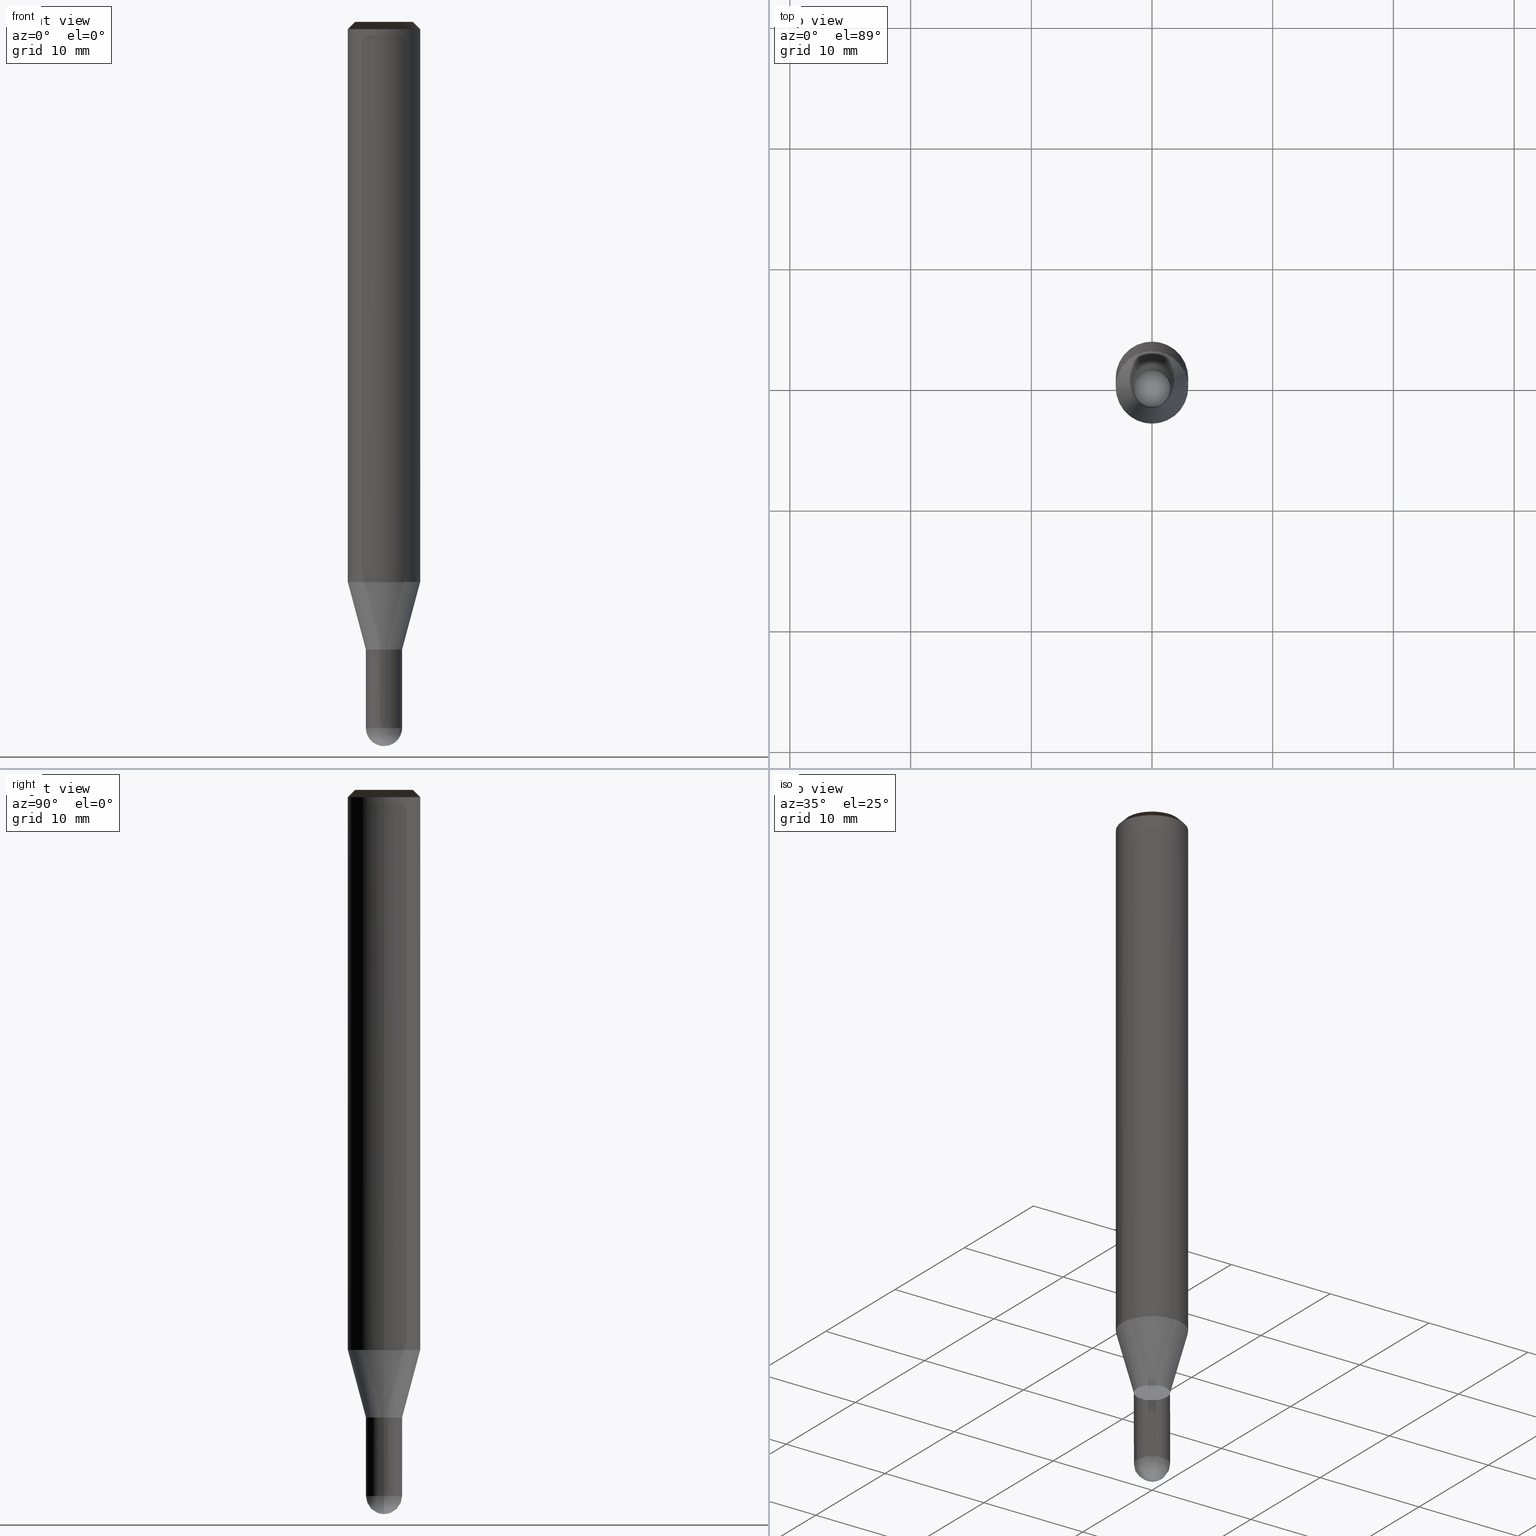
[diagram: canonical four-view strip — front | top / right | iso, engineering-drawing reading convention]
A machine part, canonical four-view strip (front | top / right | iso — engineering-drawing reading convention). The complete STEP part file that produces these views, byte-faithful:
ISO-10303-21;
HEADER;
/* Generated by ISBE GmbH (www.isbe.de) */
/* OPTION: using custom schema-name function */

FILE_DESCRIPTION(
/* description */ (''),
/* implementation_level */ '2;1');

FILE_NAME(
/*name*/ 'SHBS-2030-S06-STH',
/*time_stamp*/'2023-9-13T13:20:38',
/*author*/ ('ISBE GmbH'),
/*organization*/ ('ISBE GmbH'),
/*preprocessor_version*/ 'STEP IO v1.0',
/*originating_system*/ '',
/*authorisation*/ '');

FILE_SCHEMA (('AUTOMOTIVE_DESIGN'));
ENDSEC;

DATA;
#10=SHAPE_DEFINITION_REPRESENTATION(#11,#57);
#11=PRODUCT_DEFINITION_SHAPE('Document','',#13);
#12=PRODUCT_DEFINITION_CONTEXT('3D Mechanical Parts',#17,'design');
#13=PRODUCT_DEFINITION('A','First version',#14,#12);
#14=PRODUCT_DEFINITION_FORMATION_WITH_SPECIFIED_SOURCE('A','First version',#19,.MADE.);
#15=PRODUCT_RELATED_PRODUCT_CATEGORY('tool','tool',(#19));
#16=APPLICATION_PROTOCOL_DEFINITION('Draft International Standard', 'automotive_design',1999,#17);
#17=APPLICATION_CONTEXT('data for automotive mechanical design processes');
#18=PRODUCT_CONTEXT('3D Mechanical Parts',#17,'mechanical');
#19=PRODUCT('Document','Document','ISBE converted to STEP',(#18));
#20=(
LENGTH_UNIT()
NAMED_UNIT(*)
SI_UNIT(.MILLI.,.METRE.)
);
#21=(
NAMED_UNIT(*)
PLANE_ANGLE_UNIT()
SI_UNIT($,.RADIAN.)
);
#22=DIMENSIONAL_EXPONENTS(0.,0.,0.,0.,0.,0.,0.);
#23=PLANE_ANGLE_MEASURE_WITH_UNIT(PLANE_ANGLE_MEASURE(0.01745329252),#21);
#24=(
CONVERSION_BASED_UNIT('DEGREES',#23)
NAMED_UNIT(#22)
PLANE_ANGLE_UNIT()
);
#25=(
NAMED_UNIT(*)
SI_UNIT($,.STERADIAN.)
SOLID_ANGLE_UNIT()
);
#26=UNCERTAINTY_MEASURE_WITH_UNIT(LENGTH_MEASURE(0.001),#20, 'DISTANCE_ACCURACY_VALUE', 'Maximum model space distance between geometric entities at asserted connectivities');
#27=(
GEOMETRIC_REPRESENTATION_CONTEXT(3)
GLOBAL_UNCERTAINTY_ASSIGNED_CONTEXT((#26))
GLOBAL_UNIT_ASSIGNED_CONTEXT((#25,#24,#20))
REPRESENTATION_CONTEXT('ID1','3D')
);
#28=CARTESIAN_POINT('',(0.0,0.0,0.0));
#29=DIRECTION('',(1.0,0.0,0.0));
#30=DIRECTION('',(0.0,0.0,1.0));
#31=AXIS2_PLACEMENT_3D('',#28,#30,#29);
#32=CARTESIAN_POINT('',(0.0,0.0,0.0));
#33=DIRECTION('',(1.0,0.0,0.0));
#34=DIRECTION('',(0.0,0.0,1.0));
#35=AXIS2_PLACEMENT_3D('',#32,#34,#33);
#36=CARTESIAN_POINT('',(0.0,0.0,0.0));
#37=DIRECTION('',(1.0,0.0,0.0));
#38=DIRECTION('',(0.0,0.0,1.0));
#39=AXIS2_PLACEMENT_3D('',#36,#38,#37);
#40=CARTESIAN_POINT('',(0.0,0.0,0.0));
#41=DIRECTION('',(0.0,0.0,1.0));
#42=DIRECTION('',(1.0,0.0,0.0));
#43=AXIS2_PLACEMENT_3D('MCS',#40,#42,#41);
#44=CARTESIAN_POINT('',(0.0,0.0,46.401));
#45=DIRECTION('',(0.0,0.0,1.0));
#46=DIRECTION('',(1.0,0.0,0.0));
#47=AXIS2_PLACEMENT_3D('PCS',#44,#46,#45);
#48=CARTESIAN_POINT('',(0.0,0.0,-13.599));
#49=DIRECTION('',(0.0,0.0,1.0));
#50=DIRECTION('',(1.0,0.0,0.0));
#51=AXIS2_PLACEMENT_3D('CIP',#48,#50,#49);
#52=CARTESIAN_POINT('',(0.0,-1.5,-13.599));
#53=DIRECTION('',(0.0,0.0,1.0));
#54=DIRECTION('',(1.0,0.0,0.0));
#55=AXIS2_PLACEMENT_3D('CRP',#52,#54,#53);
#57=SHAPE_REPRESENTATION('Document',(#31,#35,#39,#43,#47,#51,#55),#27);
#58=DIRECTION('',(1.0,0.0,0.0));
#59=DIRECTION('',(0.0,0.0,1.0));
#60=CARTESIAN_POINT('',(-0.014999236035,-0.000151388161,-13.598759551399));
#61=CARTESIAN_POINT('',(-0.014528881156,-0.045829518525,-13.598229324301));
#62=CARTESIAN_POINT('',(-0.013937186909,-0.095089375168,-13.595918089126));
#63=CARTESIAN_POINT('',(-0.013184131588,-0.143429868086,-13.592068669424));
#64=CARTESIAN_POINT('',(-0.012179727689,-0.191428663775,-13.586685020735));
#65=CARTESIAN_POINT('',(-0.010840383069,-0.239154282228,-13.579772675122));
#66=CARTESIAN_POINT('',(-0.009085053089,-0.286593980739,-13.571338735487));
#67=CARTESIAN_POINT('',(-0.006835094578,-0.333711409892,-13.561391868273));
#68=CARTESIAN_POINT('',(-0.004014551228,-0.380460696051,-13.549942294559));
#69=CARTESIAN_POINT('',(-0.00055052818,-0.426791024877,-13.537001779555));
#70=CARTESIAN_POINT('',(0.003626412446,-0.472648415348,-13.522583620516));
#71=CARTESIAN_POINT('',(0.008581854661,-0.517976494259,-13.506702633075));
#72=CARTESIAN_POINT('',(0.014377137993,-0.562716872897,-13.489375136019));
#73=CARTESIAN_POINT('',(0.021068977194,-0.606809357753,-13.470618934524));
#74=CARTESIAN_POINT('',(0.028709095207,-0.650192095277,-13.450453301854));
#75=CARTESIAN_POINT('',(0.037343871872,-0.692801697888,-13.42889895956));
#76=CARTESIAN_POINT('',(0.047014010807,-0.734573375122,-13.405978056185));
#77=CARTESIAN_POINT('',(0.057754226889,-0.775441082711,-13.381714144508));
#78=CARTESIAN_POINT('',(0.069592956771,-0.815337696513,-13.356132157338));
#79=CARTESIAN_POINT('',(0.082552094964,-0.854195215038,-13.329258381895));
#80=CARTESIAN_POINT('',(0.096646757996,-0.891944992255,-13.301120432802));
#81=CARTESIAN_POINT('',(0.111885079166,-0.928518001096,-13.271747223702));
#82=CARTESIAN_POINT('',(0.128268036396,-0.963845127044,-13.241168937554));
#83=CARTESIAN_POINT('',(0.145789315592,-0.997857490483,-13.209416995613));
#84=CARTESIAN_POINT('',(0.164435211816,-1.030486795814,-13.176524025147));
#85=CARTESIAN_POINT('',(0.184184570425,-1.061665704817,-13.142523825905));
#86=CARTESIAN_POINT('',(0.205008770129,-1.091328231247,-13.107451335392));
#87=CARTESIAN_POINT('',(0.226871749666,-1.119410153213,-13.071342592962));
#88=CARTESIAN_POINT('',(0.249730079542,-1.145849439531,-13.034234702788));
#89=CARTESIAN_POINT('',(0.273533079913,-1.170586685877,-12.996165795737));
#90=CARTESIAN_POINT('',(0.298222985356,-1.193565556318,-12.957174990183));
#91=CARTESIAN_POINT('',(0.323735156861,-1.214733225538,-12.917302351816));
#92=CARTESIAN_POINT('',(0.349998340953,-1.234040816931,-12.876588852466));
#93=CARTESIAN_POINT('',(0.376934975398,-1.251443831608,-12.835076328006));
#94=CARTESIAN_POINT('',(0.404461540476,-1.266902563307,-12.792807435361));
#95=CARTESIAN_POINT('',(0.432488954305,-1.280382494216,-12.749825608676));
#96=CARTESIAN_POINT('',(0.460923010252,-1.291854666812,-12.706175014684));
#97=CARTESIAN_POINT('',(0.489664853919,-1.301296026927,-12.661900507319));
#98=CARTESIAN_POINT('',(0.518611496779,-1.308689733502,-12.617047581632));
#99=CARTESIAN_POINT('',(0.547656363036,-1.314025430739,-12.571662327035));
#100=CARTESIAN_POINT('',(0.576689865882,-1.317299478704,-12.525791379947));
#101=CARTESIAN_POINT('',(0.605600008906,-1.31851513884,-12.479481875864));
#102=CARTESIAN_POINT('',(0.634273008087,-1.317682711279,-12.432781400934));
#103=CARTESIAN_POINT('',(0.662593929459,-1.314819621339,-12.385737943052));
#104=CARTESIAN_POINT('',(0.690447337339,-1.309950453166,-12.33839984255));
#105=CARTESIAN_POINT('',(0.717717947763,-1.303106928988,-12.290815742527));
#106=CARTESIAN_POINT('',(0.744291281714,-1.294327833116,-12.243034538862));
#107=CARTESIAN_POINT('',(0.770054312603,-1.283658880386,-12.195105329971));
#108=CARTESIAN_POINT('',(0.794896102545,-1.271152529401,-12.147077366357));
#109=CARTESIAN_POINT('',(0.81870842201,-1.256867741542,-12.099));
#110=CARTESIAN_POINT('',(0.856668953844,-1.231307558459,-12.019731707317));
#111=CARTESIAN_POINT('',(0.893832088722,-1.204601260655,-11.940463414634));
#112=CARTESIAN_POINT('',(0.930163234785,-1.176773706646,-11.861195121951));
#113=CARTESIAN_POINT('',(0.965628574601,-1.147850798629,-11.781926829268));
#114=CARTESIAN_POINT('',(1.000195096638,-1.117859458368,-11.702658536585));
#115=CARTESIAN_POINT('',(1.033830625993,-1.086827602133,-11.623390243902));
#116=CARTESIAN_POINT('',(1.066503854344,-1.054784114722,-11.54412195122));
#117=CARTESIAN_POINT('',(1.098184369088,-1.021758822566,-11.464853658537));
#118=CARTESIAN_POINT('',(1.12884268165,-0.987782465974,-11.385585365854));
#119=CARTESIAN_POINT('',(1.158450254933,-0.952886670516,-11.306317073171));
#120=CARTESIAN_POINT('',(1.186979529879,-0.917103917584,-11.227048780488));
#121=CARTESIAN_POINT('',(1.214403951125,-0.880467514161,-11.147780487805));
#122=CARTESIAN_POINT('',(1.240697991713,-0.843011561818,-11.068512195122));
#123=CARTESIAN_POINT('',(1.265837176861,-0.80477092497,-10.989243902439));
#124=CARTESIAN_POINT('',(1.289798106735,-0.765781198427,-10.909975609756));
#125=CARTESIAN_POINT('',(1.312558478236,-0.726078674256,-10.830707317073));
#126=CARTESIAN_POINT('',(1.33409710576,-0.685700308009,-10.75143902439));
#127=CARTESIAN_POINT('',(1.354393940911,-0.644683684316,-10.672170731707));
#128=CARTESIAN_POINT('',(1.373430091172,-0.603066981904,-10.592902439024));
#129=CARTESIAN_POINT('',(1.391187837483,-0.560888938062,-10.513634146341));
#130=CARTESIAN_POINT('',(1.407650650736,-0.51818881258,-10.434365853659));
#131=CARTESIAN_POINT('',(1.422803207163,-0.475006351208,-10.355097560976));
#132=CARTESIAN_POINT('',(1.436631402595,-0.43138174866,-10.275829268293));
#133=CARTESIAN_POINT('',(1.449122365597,-0.3873556112,-10.19656097561));
#134=CARTESIAN_POINT('',(1.46026446944,-0.342968918843,-10.117292682927));
#135=CARTESIAN_POINT('',(1.47004734293,-0.298262987216,-10.038024390244));
#136=CARTESIAN_POINT('',(1.478461880062,-0.253279429095,-9.958756097561));
#137=CARTESIAN_POINT('',(1.485500248491,-0.208060115674,-9.879487804878));
#138=CARTESIAN_POINT('',(1.491155896824,-0.162647137592,-9.800219512195));
#139=CARTESIAN_POINT('',(1.495423560723,-0.117082765751,-9.720951219512));
#140=CARTESIAN_POINT('',(1.498299267797,-0.071409411974,-9.641682926829));
#141=CARTESIAN_POINT('',(1.499780341308,-0.025669589526,-9.562414634146));
#142=CARTESIAN_POINT('',(1.499865402655,0.020094126461,-9.483146341463));
#143=CARTESIAN_POINT('',(1.498554372663,0.065839138613,-9.40387804878));
#144=CARTESIAN_POINT('',(1.495848471652,0.111522866965,-9.324609756098));
#145=CARTESIAN_POINT('',(1.491750218306,0.157102788596,-9.245341463415));
#146=CARTESIAN_POINT('',(1.486263427323,0.20253647721,-9.166073170732));
#147=CARTESIAN_POINT('',(1.479393205871,0.247781642627,-9.086804878049));
#148=CARTESIAN_POINT('',(1.471145948827,0.292796170144,-9.007536585366));
#149=CARTESIAN_POINT('',(1.461529332829,0.337538159742,-8.928268292683));
#150=CARTESIAN_POINT('',(1.45055230913,0.381965965079,-8.849));
#151=CARTESIAN_POINT('',(1.438225095265,0.426038232263,-8.769731707317));
#152=CARTESIAN_POINT('',(1.424559165542,0.469713938338,-8.690463414634));
#153=CARTESIAN_POINT('',(1.40956724036,0.512952429474,-8.611195121951));
#154=CARTESIAN_POINT('',(1.393263274368,0.555713458804,-8.531926829268));
#155=CARTESIAN_POINT('',(1.37566244348,0.597957223887,-8.452658536585));
#156=CARTESIAN_POINT('',(1.356781130743,0.63964440376,-8.373390243902));
#157=CARTESIAN_POINT('',(1.336636911092,0.680736195532,-8.29412195122));
#158=CARTESIAN_POINT('',(1.31524853499,0.721194350509,-8.214853658537));
#159=CARTESIAN_POINT('',(1.292635910976,0.760981209791,-8.135585365854));
#160=CARTESIAN_POINT('',(1.26882008713,0.80005973933,-8.056317073171));
#161=CARTESIAN_POINT('',(1.243823231484,0.838393564396,-7.977048780488));
#162=CARTESIAN_POINT('',(1.217668611389,0.875947003441,-7.897780487805));
#163=CARTESIAN_POINT('',(1.190380571856,0.912685101307,-7.818512195122));
#164=CARTESIAN_POINT('',(1.161984512894,0.948573661766,-7.739243902439));
#165=CARTESIAN_POINT('',(1.132506865869,0.983579279347,-7.659975609756));
#166=CARTESIAN_POINT('',(1.101975068901,1.017669370434,-7.580707317073));
#167=CARTESIAN_POINT('',(1.070417541327,1.050812203593,-7.50143902439));
#168=CARTESIAN_POINT('',(1.037863657242,1.082976929106,-7.422170731707));
#169=CARTESIAN_POINT('',(1.004343718162,1.114133607692,-7.342902439024));
#170=CARTESIAN_POINT('',(0.969888924819,1.144253238367,-7.263634146341));
#171=CARTESIAN_POINT('',(0.934531348115,1.173307785447,-7.184365853659));
#172=CARTESIAN_POINT('',(0.898303899275,1.201270204637,-7.105097560976));
#173=CARTESIAN_POINT('',(0.861240299209,1.228114468206,-7.025829268293));
#174=CARTESIAN_POINT('',(0.823375047129,1.253815589218,-6.94656097561));
#175=CARTESIAN_POINT('',(0.784743388429,1.278349644783,-6.867292682927));
#176=CARTESIAN_POINT('',(0.745381281886,1.301693798331,-6.788024390244));
#177=CARTESIAN_POINT('',(0.705325366185,1.323826320866,-6.708756097561));
#178=CARTESIAN_POINT('',(0.664612925816,1.344726611189,-6.629487804878));
#179=CARTESIAN_POINT('',(0.62328185637,1.364375215079,-6.550219512195));
#180=CARTESIAN_POINT('',(0.581370629264,1.382753843397,-6.470951219512));
#181=CARTESIAN_POINT('',(0.538918255933,1.399845389113,-6.391682926829));
#182=CARTESIAN_POINT('',(0.495964251517,1.415633943227,-6.312414634146));
#183=CARTESIAN_POINT('',(0.452548598079,1.430104809578,-6.233146341463));
#184=CARTESIAN_POINT('',(0.40871170739,1.443244518521,-6.15387804878));
#185=CARTESIAN_POINT('',(0.364494383314,1.455040839472,-6.074609756098));
#186=CARTESIAN_POINT('',(0.319937783827,1.465482792284,-5.995341463415));
#187=CARTESIAN_POINT('',(0.275083382705,1.47456065747,-5.916073170732));
#188=CARTESIAN_POINT('',(0.229972930921,1.482265985255,-5.836804878049));
#189=CARTESIAN_POINT('',(0.184648417785,1.488591603432,-5.757536585366));
#190=CARTESIAN_POINT('',(0.139152031855,1.493531624048,-5.678268292683));
#191=CARTESIAN_POINT('',(0.093526121671,1.497081448875,-5.599));
#192=CARTESIAN_POINT('',(0.014999236035,0.000151388161,-13.598759551399));
#193=CARTESIAN_POINT('',(0.014528881156,0.045829518525,-13.598229324301));
#194=CARTESIAN_POINT('',(0.013937186909,0.095089375168,-13.595918089126));
#195=CARTESIAN_POINT('',(0.013184131588,0.143429868086,-13.592068669424));
#196=CARTESIAN_POINT('',(0.012179727689,0.191428663775,-13.586685020735));
#197=CARTESIAN_POINT('',(0.010840383069,0.239154282228,-13.579772675122));
#198=CARTESIAN_POINT('',(0.009085053089,0.286593980739,-13.571338735487));
#199=CARTESIAN_POINT('',(0.006835094578,0.333711409892,-13.561391868273));
#200=CARTESIAN_POINT('',(0.004014551228,0.380460696051,-13.549942294559));
#201=CARTESIAN_POINT('',(0.00055052818,0.426791024877,-13.537001779555));
#202=CARTESIAN_POINT('',(-0.003626412446,0.472648415348,-13.522583620516));
#203=CARTESIAN_POINT('',(-0.008581854661,0.517976494259,-13.506702633075));
#204=CARTESIAN_POINT('',(-0.014377137993,0.562716872897,-13.489375136019));
#205=CARTESIAN_POINT('',(-0.021068977194,0.606809357753,-13.470618934524));
#206=CARTESIAN_POINT('',(-0.028709095207,0.650192095277,-13.450453301854));
#207=CARTESIAN_POINT('',(-0.037343871872,0.692801697888,-13.42889895956));
#208=CARTESIAN_POINT('',(-0.047014010807,0.734573375122,-13.405978056185));
#209=CARTESIAN_POINT('',(-0.057754226889,0.775441082711,-13.381714144508));
#210=CARTESIAN_POINT('',(-0.069592956771,0.815337696513,-13.356132157338));
#211=CARTESIAN_POINT('',(-0.082552094964,0.854195215038,-13.329258381895));
#212=CARTESIAN_POINT('',(-0.096646757996,0.891944992255,-13.301120432802));
#213=CARTESIAN_POINT('',(-0.111885079166,0.928518001096,-13.271747223702));
#214=CARTESIAN_POINT('',(-0.128268036396,0.963845127044,-13.241168937554));
#215=CARTESIAN_POINT('',(-0.145789315592,0.997857490483,-13.209416995613));
#216=CARTESIAN_POINT('',(-0.164435211816,1.030486795814,-13.176524025147));
#217=CARTESIAN_POINT('',(-0.184184570425,1.061665704817,-13.142523825905));
#218=CARTESIAN_POINT('',(-0.205008770129,1.091328231247,-13.107451335392));
#219=CARTESIAN_POINT('',(-0.226871749666,1.119410153213,-13.071342592962));
#220=CARTESIAN_POINT('',(-0.249730079542,1.145849439531,-13.034234702788));
#221=CARTESIAN_POINT('',(-0.273533079913,1.170586685877,-12.996165795737));
#222=CARTESIAN_POINT('',(-0.298222985356,1.193565556318,-12.957174990183));
#223=CARTESIAN_POINT('',(-0.323735156861,1.214733225538,-12.917302351816));
#224=CARTESIAN_POINT('',(-0.349998340953,1.234040816931,-12.876588852466));
#225=CARTESIAN_POINT('',(-0.376934975398,1.251443831608,-12.835076328006));
#226=CARTESIAN_POINT('',(-0.404461540476,1.266902563307,-12.792807435361));
#227=CARTESIAN_POINT('',(-0.432488954305,1.280382494216,-12.749825608676));
#228=CARTESIAN_POINT('',(-0.460923010252,1.291854666812,-12.706175014684));
#229=CARTESIAN_POINT('',(-0.489664853919,1.301296026927,-12.661900507319));
#230=CARTESIAN_POINT('',(-0.518611496779,1.308689733502,-12.617047581632));
#231=CARTESIAN_POINT('',(-0.547656363036,1.314025430739,-12.571662327035));
#232=CARTESIAN_POINT('',(-0.576689865882,1.317299478704,-12.525791379947));
#233=CARTESIAN_POINT('',(-0.605600008906,1.31851513884,-12.479481875864));
#234=CARTESIAN_POINT('',(-0.634273008087,1.317682711279,-12.432781400934));
#235=CARTESIAN_POINT('',(-0.662593929459,1.314819621339,-12.385737943052));
#236=CARTESIAN_POINT('',(-0.690447337339,1.309950453166,-12.33839984255));
#237=CARTESIAN_POINT('',(-0.717717947763,1.303106928988,-12.290815742527));
#238=CARTESIAN_POINT('',(-0.744291281714,1.294327833116,-12.243034538862));
#239=CARTESIAN_POINT('',(-0.770054312603,1.283658880386,-12.195105329971));
#240=CARTESIAN_POINT('',(-0.794896102545,1.271152529401,-12.147077366357));
#241=CARTESIAN_POINT('',(-0.81870842201,1.256867741542,-12.099));
#242=CARTESIAN_POINT('',(-0.856668953844,1.231307558459,-12.019731707317));
#243=CARTESIAN_POINT('',(-0.893832088722,1.204601260655,-11.940463414634));
#244=CARTESIAN_POINT('',(-0.930163234785,1.176773706646,-11.861195121951));
#245=CARTESIAN_POINT('',(-0.965628574601,1.147850798629,-11.781926829268));
#246=CARTESIAN_POINT('',(-1.000195096638,1.117859458368,-11.702658536585));
#247=CARTESIAN_POINT('',(-1.033830625993,1.086827602133,-11.623390243902));
#248=CARTESIAN_POINT('',(-1.066503854344,1.054784114722,-11.54412195122));
#249=CARTESIAN_POINT('',(-1.098184369088,1.021758822566,-11.464853658537));
#250=CARTESIAN_POINT('',(-1.12884268165,0.987782465974,-11.385585365854));
#251=CARTESIAN_POINT('',(-1.158450254933,0.952886670516,-11.306317073171));
#252=CARTESIAN_POINT('',(-1.186979529879,0.917103917584,-11.227048780488));
#253=CARTESIAN_POINT('',(-1.214403951125,0.880467514161,-11.147780487805));
#254=CARTESIAN_POINT('',(-1.240697991713,0.843011561818,-11.068512195122));
#255=CARTESIAN_POINT('',(-1.265837176861,0.80477092497,-10.989243902439));
#256=CARTESIAN_POINT('',(-1.289798106735,0.765781198427,-10.909975609756));
#257=CARTESIAN_POINT('',(-1.312558478236,0.726078674256,-10.830707317073));
#258=CARTESIAN_POINT('',(-1.33409710576,0.685700308009,-10.75143902439));
#259=CARTESIAN_POINT('',(-1.354393940911,0.644683684316,-10.672170731707));
#260=CARTESIAN_POINT('',(-1.373430091172,0.603066981904,-10.592902439024));
#261=CARTESIAN_POINT('',(-1.391187837483,0.560888938062,-10.513634146341));
#262=CARTESIAN_POINT('',(-1.407650650736,0.51818881258,-10.434365853659));
#263=CARTESIAN_POINT('',(-1.422803207163,0.475006351208,-10.355097560976));
#264=CARTESIAN_POINT('',(-1.436631402595,0.43138174866,-10.275829268293));
#265=CARTESIAN_POINT('',(-1.449122365597,0.3873556112,-10.19656097561));
#266=CARTESIAN_POINT('',(-1.46026446944,0.342968918843,-10.117292682927));
#267=CARTESIAN_POINT('',(-1.47004734293,0.298262987216,-10.038024390244));
#268=CARTESIAN_POINT('',(-1.478461880062,0.253279429095,-9.958756097561));
#269=CARTESIAN_POINT('',(-1.485500248491,0.208060115674,-9.879487804878));
#270=CARTESIAN_POINT('',(-1.491155896824,0.162647137592,-9.800219512195));
#271=CARTESIAN_POINT('',(-1.495423560723,0.117082765751,-9.720951219512));
#272=CARTESIAN_POINT('',(-1.498299267797,0.071409411974,-9.641682926829));
#273=CARTESIAN_POINT('',(-1.499780341308,0.025669589526,-9.562414634146));
#274=CARTESIAN_POINT('',(-1.499865402655,-0.020094126461,-9.483146341463));
#275=CARTESIAN_POINT('',(-1.498554372663,-0.065839138613,-9.40387804878));
#276=CARTESIAN_POINT('',(-1.495848471652,-0.111522866965,-9.324609756098));
#277=CARTESIAN_POINT('',(-1.491750218306,-0.157102788596,-9.245341463415));
#278=CARTESIAN_POINT('',(-1.486263427323,-0.20253647721,-9.166073170732));
#279=CARTESIAN_POINT('',(-1.479393205871,-0.247781642627,-9.086804878049));
#280=CARTESIAN_POINT('',(-1.471145948827,-0.292796170144,-9.007536585366));
#281=CARTESIAN_POINT('',(-1.461529332829,-0.337538159742,-8.928268292683));
#282=CARTESIAN_POINT('',(-1.45055230913,-0.381965965079,-8.849));
#283=CARTESIAN_POINT('',(-1.438225095265,-0.426038232263,-8.769731707317));
#284=CARTESIAN_POINT('',(-1.424559165542,-0.469713938338,-8.690463414634));
#285=CARTESIAN_POINT('',(-1.40956724036,-0.512952429474,-8.611195121951));
#286=CARTESIAN_POINT('',(-1.393263274368,-0.555713458804,-8.531926829268));
#287=CARTESIAN_POINT('',(-1.37566244348,-0.597957223887,-8.452658536585));
#288=CARTESIAN_POINT('',(-1.356781130743,-0.63964440376,-8.373390243902));
#289=CARTESIAN_POINT('',(-1.336636911092,-0.680736195532,-8.29412195122));
#290=CARTESIAN_POINT('',(-1.31524853499,-0.721194350509,-8.214853658537));
#291=CARTESIAN_POINT('',(-1.292635910976,-0.760981209791,-8.135585365854));
#292=CARTESIAN_POINT('',(-1.26882008713,-0.80005973933,-8.056317073171));
#293=CARTESIAN_POINT('',(-1.243823231484,-0.838393564396,-7.977048780488));
#294=CARTESIAN_POINT('',(-1.217668611389,-0.875947003441,-7.897780487805));
#295=CARTESIAN_POINT('',(-1.190380571856,-0.912685101307,-7.818512195122));
#296=CARTESIAN_POINT('',(-1.161984512894,-0.948573661766,-7.739243902439));
#297=CARTESIAN_POINT('',(-1.132506865869,-0.983579279347,-7.659975609756));
#298=CARTESIAN_POINT('',(-1.101975068901,-1.017669370434,-7.580707317073));
#299=CARTESIAN_POINT('',(-1.070417541327,-1.050812203593,-7.50143902439));
#300=CARTESIAN_POINT('',(-1.037863657242,-1.082976929106,-7.422170731707));
#301=CARTESIAN_POINT('',(-1.004343718162,-1.114133607692,-7.342902439024));
#302=CARTESIAN_POINT('',(-0.969888924819,-1.144253238367,-7.263634146341));
#303=CARTESIAN_POINT('',(-0.934531348115,-1.173307785447,-7.184365853659));
#304=CARTESIAN_POINT('',(-0.898303899275,-1.201270204637,-7.105097560976));
#305=CARTESIAN_POINT('',(-0.861240299209,-1.228114468206,-7.025829268293));
#306=CARTESIAN_POINT('',(-0.823375047129,-1.253815589218,-6.94656097561));
#307=CARTESIAN_POINT('',(-0.784743388429,-1.278349644783,-6.867292682927));
#308=CARTESIAN_POINT('',(-0.745381281886,-1.301693798331,-6.788024390244));
#309=CARTESIAN_POINT('',(-0.705325366185,-1.323826320866,-6.708756097561));
#310=CARTESIAN_POINT('',(-0.664612925816,-1.344726611189,-6.629487804878));
#311=CARTESIAN_POINT('',(-0.62328185637,-1.364375215079,-6.550219512195));
#312=CARTESIAN_POINT('',(-0.581370629264,-1.382753843397,-6.470951219512));
#313=CARTESIAN_POINT('',(-0.538918255933,-1.399845389113,-6.391682926829));
#314=CARTESIAN_POINT('',(-0.495964251517,-1.415633943227,-6.312414634146));
#315=CARTESIAN_POINT('',(-0.452548598079,-1.430104809578,-6.233146341463));
#316=CARTESIAN_POINT('',(-0.40871170739,-1.443244518521,-6.15387804878));
#317=CARTESIAN_POINT('',(-0.364494383314,-1.455040839472,-6.074609756098));
#318=CARTESIAN_POINT('',(-0.319937783827,-1.465482792284,-5.995341463415));
#319=CARTESIAN_POINT('',(-0.275083382705,-1.47456065747,-5.916073170732));
#320=CARTESIAN_POINT('',(-0.229972930921,-1.482265985255,-5.836804878049));
#321=CARTESIAN_POINT('',(-0.184648417785,-1.488591603432,-5.757536585366));
#322=CARTESIAN_POINT('',(-0.139152031855,-1.493531624048,-5.678268292683));
#323=CARTESIAN_POINT('',(-0.093526121671,-1.497081448875,-5.599));
#324=CARTESIAN_POINT('',(0.0,0.0,-13.599));
#325=CARTESIAN_POINT('',(1.5,0.0,-13.599));
#326=CARTESIAN_POINT('',(1.5,1.5,-13.599));
#327=CARTESIAN_POINT('',(0.0,1.5,-13.599));
#328=CARTESIAN_POINT('',(-1.5,1.5,-13.599));
#329=CARTESIAN_POINT('',(-1.5,0.0,-13.599));
#330=CARTESIAN_POINT('',(1.5,0.0,-12.099));
#331=CARTESIAN_POINT('',(1.5,1.5,-12.099));
#332=CARTESIAN_POINT('',(0.0,1.5,-12.099));
#333=CARTESIAN_POINT('',(-1.5,1.5,-12.099));
#334=CARTESIAN_POINT('',(-1.5,0.0,-12.099));
#335=CARTESIAN_POINT('',(1.5,0.0,-5.599));
#336=CARTESIAN_POINT('',(1.5,1.5,-5.599));
#337=CARTESIAN_POINT('',(0.0,1.5,-5.599));
#338=CARTESIAN_POINT('',(-1.5,1.5,-5.599));
#339=CARTESIAN_POINT('',(-1.5,0.0,-5.599));
#340=CARTESIAN_POINT('',(0.0,0.0,-5.599));
#341=CARTESIAN_POINT('',(-1.5,-1.5,-13.599));
#342=CARTESIAN_POINT('',(0.0,-1.5,-13.599));
#343=CARTESIAN_POINT('',(1.5,-1.5,-13.599));
#344=CARTESIAN_POINT('',(-1.5,-1.5,-12.099));
#345=CARTESIAN_POINT('',(0.0,-1.5,-12.099));
#346=CARTESIAN_POINT('',(1.5,-1.5,-12.099));
#347=CARTESIAN_POINT('',(-1.5,-1.5,-5.599));
#348=CARTESIAN_POINT('',(0.0,-1.5,-5.599));
#349=CARTESIAN_POINT('',(1.5,-1.5,-5.599));
#350=CARTESIAN_POINT('',(1.5,0.0,-5.598076211353));
#351=CARTESIAN_POINT('',(1.5,1.5,-5.598076211353));
#352=CARTESIAN_POINT('',(0.0,1.5,-5.598076211353));
#353=CARTESIAN_POINT('',(-1.5,1.5,-5.598076211353));
#354=CARTESIAN_POINT('',(-1.5,0.0,-5.598076211353));
#355=CARTESIAN_POINT('',(3.0,0.0,-0.0));
#356=CARTESIAN_POINT('',(3.0,3.0,-0.0));
#357=CARTESIAN_POINT('',(0.0,3.0,-0.0));
#358=CARTESIAN_POINT('',(-3.0,3.0,-0.0));
#359=CARTESIAN_POINT('',(-3.0,0.0,-0.0));
#360=CARTESIAN_POINT('',(3.0,0.0,45.801));
#361=CARTESIAN_POINT('',(3.0,3.0,45.801));
#362=CARTESIAN_POINT('',(0.0,3.0,45.801));
#363=CARTESIAN_POINT('',(-3.0,3.0,45.801));
#364=CARTESIAN_POINT('',(-3.0,0.0,45.801));
#365=CARTESIAN_POINT('',(2.4,0.0,46.401));
#366=CARTESIAN_POINT('',(2.4,2.4,46.401));
#367=CARTESIAN_POINT('',(0.0,2.4,46.401));
#368=CARTESIAN_POINT('',(-2.4,2.4,46.401));
#369=CARTESIAN_POINT('',(-2.4,0.0,46.401));
#370=CARTESIAN_POINT('',(0.0,0.0,46.401));
#371=CARTESIAN_POINT('',(-1.5,-1.5,-5.598076211353));
#372=CARTESIAN_POINT('',(0.0,-1.5,-5.598076211353));
#373=CARTESIAN_POINT('',(1.5,-1.5,-5.598076211353));
#374=CARTESIAN_POINT('',(-3.0,-3.0,-0.0));
#375=CARTESIAN_POINT('',(0.0,-3.0,-0.0));
#376=CARTESIAN_POINT('',(3.0,-3.0,-0.0));
#377=CARTESIAN_POINT('',(-3.0,-3.0,45.801));
#378=CARTESIAN_POINT('',(0.0,-3.0,45.801));
#379=CARTESIAN_POINT('',(3.0,-3.0,45.801));
#380=CARTESIAN_POINT('',(-2.4,-2.4,46.401));
#381=CARTESIAN_POINT('',(0.0,-2.4,46.401));
#382=CARTESIAN_POINT('',(2.4,-2.4,46.401));
#383=(
BOUNDED_CURVE()
B_SPLINE_CURVE(1,(#60,#61,#62,#63,#64,#65,#66,#67,#68,#69,#70,#71,#72,#73,#74,#75,#76,#77,#78,#79,#80,#81,#82,#83,#84,#85,#86,#87,#88,#89,#90,#91,#92,#93,#94,#95,#96,#97,#98,#99,#100,#101,#102,#103,#104,#105,#106,#107,#108,#109,#110,#111,#112,#113,#114,#115,#116,#117,#118,#119,#120,#121,#122,#123,#124,#125,#126,#127,#128,#129,#130,#131,#132,#133,#134,#135,#136,#137,#138,#139,#140,#141,#142,#143,#144,#145,#146,#147,#148,#149,#150,#151,#152,#153,#154,#155,#156,#157,#158,#159,#160,#161,#162,#163,#164,#165,#166,#167,#168,#169,#170,#171,#172,#173,#174,#175,#176,#177,#178,#179,#180,#181,#182,#183,#184,#185,#186,#187,#188,#189,#190,#191),.UNSPECIFIED.,.F.,.F.)
B_SPLINE_CURVE_WITH_KNOTS((2,1,1,1,1,1,1,1,1,1,1,1,1,1,1,1,1,1,1,1,1,1,1,1,1,1,1,1,1,1,1,1,1,1,1,1,1,1,1,1,1,1,1,1,1,1,1,1,1,1,1,1,1,1,1,1,1,1,1,1,1,1,1,1,1,1,1,1,1,1,1,1,1,1,1,1,1,1,1,1,1,1,1,1,1,1,1,1,1,1,1,1,1,1,1,1,1,1,1,1,1,1,1,1,1,1,1,1,1,1,1,1,1,1,1,1,1,1,1,1,1,1,1,1,1,1,1,1,1,1,1,2),
(0.0,0.004566138753,0.009495497384,0.014343072613,0.019171742092,0.0239936125,0.028812818263,0.03363131614,0.038450321276,0.043270789584,0.048093614386,0.052919717708,0.057750095893,0.062585842339,0.067428157082,0.072278347782,0.077137824441,0.082008089187,0.086890722007,0.091787363108,0.096699692476,0.101629407217,0.106578197232,0.111547719777,0.116539573507,0.121555272536,0.126596221067,0.131663689098,0.136758789671,0.141882458071,0.147035433334,0.152218242351,0.157431186769,0.162674332874,0.167947504513,0.173250279105,0.178581986717,0.183941712119,0.189328299742,0.194740361364,0.200176286385,0.205634254493,0.211112250526,0.216608081315,0.222119394306,0.227643697721,0.233178382056,0.238720742687,0.244268003358,0.249817340342,0.258965909362,0.268114478382,0.277263047403,0.286411616423,0.295560185443,0.304708754463,0.313857323483,0.323005892504,0.332154461524,0.341303030544,0.350451599564,0.359600168585,0.368748737605,0.377897306625,0.387045875645,0.396194444665,0.405343013686,0.414491582706,0.423640151726,0.432788720746,0.441937289767,0.451085858787,0.460234427807,0.469382996827,0.478531565847,0.487680134868,0.496828703888,0.505977272908,0.515125841928,0.524274410949,0.533422979969,0.542571548989,0.551720118009,0.560868687029,0.57001725605,0.57916582507,0.58831439409,0.59746296311,0.606611532131,0.615760101151,0.624908670171,0.634057239191,0.643205808211,0.652354377232,0.661502946252,0.670651515272,0.679800084292,0.688948653312,0.698097222333,0.707245791353,0.716394360373,0.725542929393,0.734691498414,0.743840067434,0.752988636454,0.762137205474,0.771285774494,0.780434343515,0.789582912535,0.798731481555,0.807880050575,0.817028619596,0.826177188616,0.835325757636,0.844474326656,0.853622895676,0.862771464697,0.871920033717,0.881068602737,0.890217171757,0.899365740778,0.908514309798,0.917662878818,0.926811447838,0.935960016858,0.945108585879,0.954257154899,0.963405723919,0.972554292939,0.98170286196,0.99085143098,1.0),.UNSPECIFIED.)
CURVE()
GEOMETRIC_REPRESENTATION_ITEM()
RATIONAL_B_SPLINE_CURVE((1.0,1.0,1.0,1.0,1.0,1.0,1.0,1.0,1.0,1.0,1.0,1.0,1.0,1.0,1.0,1.0,1.0,1.0,1.0,1.0,1.0,1.0,1.0,1.0,1.0,1.0,1.0,1.0,1.0,1.0,1.0,1.0,1.0,1.0,1.0,1.0,1.0,1.0,1.0,1.0,1.0,1.0,1.0,1.0,1.0,1.0,1.0,1.0,1.0,1.0,1.0,1.0,1.0,1.0,1.0,1.0,1.0,1.0,1.0,1.0,1.0,1.0,1.0,1.0,1.0,1.0,1.0,1.0,1.0,1.0,1.0,1.0,1.0,1.0,1.0,1.0,1.0,1.0,1.0,1.0,1.0,1.0,1.0,1.0,1.0,1.0,1.0,1.0,1.0,1.0,1.0,1.0,1.0,1.0,1.0,1.0,1.0,1.0,1.0,1.0,1.0,1.0,1.0,1.0,1.0,1.0,1.0,1.0,1.0,1.0,1.0,1.0,1.0,1.0,1.0,1.0,1.0,1.0,1.0,1.0,1.0,1.0,1.0,1.0,1.0,1.0,1.0,1.0,1.0,1.0,1.0,1.0))
REPRESENTATION_ITEM('')
);
#384=(
BOUNDED_CURVE()
B_SPLINE_CURVE(1,(#192,#193,#194,#195,#196,#197,#198,#199,#200,#201,#202,#203,#204,#205,#206,#207,#208,#209,#210,#211,#212,#213,#214,#215,#216,#217,#218,#219,#220,#221,#222,#223,#224,#225,#226,#227,#228,#229,#230,#231,#232,#233,#234,#235,#236,#237,#238,#239,#240,#241,#242,#243,#244,#245,#246,#247,#248,#249,#250,#251,#252,#253,#254,#255,#256,#257,#258,#259,#260,#261,#262,#263,#264,#265,#266,#267,#268,#269,#270,#271,#272,#273,#274,#275,#276,#277,#278,#279,#280,#281,#282,#283,#284,#285,#286,#287,#288,#289,#290,#291,#292,#293,#294,#295,#296,#297,#298,#299,#300,#301,#302,#303,#304,#305,#306,#307,#308,#309,#310,#311,#312,#313,#314,#315,#316,#317,#318,#319,#320,#321,#322,#323),.UNSPECIFIED.,.F.,.F.)
B_SPLINE_CURVE_WITH_KNOTS((2,1,1,1,1,1,1,1,1,1,1,1,1,1,1,1,1,1,1,1,1,1,1,1,1,1,1,1,1,1,1,1,1,1,1,1,1,1,1,1,1,1,1,1,1,1,1,1,1,1,1,1,1,1,1,1,1,1,1,1,1,1,1,1,1,1,1,1,1,1,1,1,1,1,1,1,1,1,1,1,1,1,1,1,1,1,1,1,1,1,1,1,1,1,1,1,1,1,1,1,1,1,1,1,1,1,1,1,1,1,1,1,1,1,1,1,1,1,1,1,1,1,1,1,1,1,1,1,1,1,1,2),
(0.0,0.004566138753,0.009495497384,0.014343072613,0.019171742092,0.0239936125,0.028812818263,0.03363131614,0.038450321276,0.043270789584,0.048093614386,0.052919717708,0.057750095893,0.062585842339,0.067428157082,0.072278347782,0.077137824441,0.082008089187,0.086890722007,0.091787363108,0.096699692476,0.101629407217,0.106578197232,0.111547719777,0.116539573507,0.121555272536,0.126596221067,0.131663689098,0.136758789671,0.141882458071,0.147035433334,0.152218242351,0.157431186769,0.162674332874,0.167947504513,0.173250279105,0.178581986717,0.183941712119,0.189328299742,0.194740361364,0.200176286385,0.205634254493,0.211112250526,0.216608081315,0.222119394306,0.227643697721,0.233178382056,0.238720742687,0.244268003358,0.249817340342,0.258965909362,0.268114478382,0.277263047403,0.286411616423,0.295560185443,0.304708754463,0.313857323483,0.323005892504,0.332154461524,0.341303030544,0.350451599564,0.359600168585,0.368748737605,0.377897306625,0.387045875645,0.396194444665,0.405343013686,0.414491582706,0.423640151726,0.432788720746,0.441937289767,0.451085858787,0.460234427807,0.469382996827,0.478531565847,0.487680134868,0.496828703888,0.505977272908,0.515125841928,0.524274410949,0.533422979969,0.542571548989,0.551720118009,0.560868687029,0.57001725605,0.57916582507,0.58831439409,0.59746296311,0.606611532131,0.615760101151,0.624908670171,0.634057239191,0.643205808211,0.652354377232,0.661502946252,0.670651515272,0.679800084292,0.688948653312,0.698097222333,0.707245791353,0.716394360373,0.725542929393,0.734691498414,0.743840067434,0.752988636454,0.762137205474,0.771285774494,0.780434343515,0.789582912535,0.798731481555,0.807880050575,0.817028619596,0.826177188616,0.835325757636,0.844474326656,0.853622895676,0.862771464697,0.871920033717,0.881068602737,0.890217171757,0.899365740778,0.908514309798,0.917662878818,0.926811447838,0.935960016858,0.945108585879,0.954257154899,0.963405723919,0.972554292939,0.98170286196,0.99085143098,1.0),.UNSPECIFIED.)
CURVE()
GEOMETRIC_REPRESENTATION_ITEM()
RATIONAL_B_SPLINE_CURVE((1.0,1.0,1.0,1.0,1.0,1.0,1.0,1.0,1.0,1.0,1.0,1.0,1.0,1.0,1.0,1.0,1.0,1.0,1.0,1.0,1.0,1.0,1.0,1.0,1.0,1.0,1.0,1.0,1.0,1.0,1.0,1.0,1.0,1.0,1.0,1.0,1.0,1.0,1.0,1.0,1.0,1.0,1.0,1.0,1.0,1.0,1.0,1.0,1.0,1.0,1.0,1.0,1.0,1.0,1.0,1.0,1.0,1.0,1.0,1.0,1.0,1.0,1.0,1.0,1.0,1.0,1.0,1.0,1.0,1.0,1.0,1.0,1.0,1.0,1.0,1.0,1.0,1.0,1.0,1.0,1.0,1.0,1.0,1.0,1.0,1.0,1.0,1.0,1.0,1.0,1.0,1.0,1.0,1.0,1.0,1.0,1.0,1.0,1.0,1.0,1.0,1.0,1.0,1.0,1.0,1.0,1.0,1.0,1.0,1.0,1.0,1.0,1.0,1.0,1.0,1.0,1.0,1.0,1.0,1.0,1.0,1.0,1.0,1.0,1.0,1.0,1.0,1.0,1.0,1.0,1.0,1.0))
REPRESENTATION_ITEM('')
);
#385=SHAPE_REPRESENTATION_RELATIONSHIP('','',#57,#386);
#386=GEOMETRICALLY_BOUNDED_WIREFRAME_SHAPE_REPRESENTATION('Curves',(#387,#31),#27);
#387=GEOMETRIC_CURVE_SET('CurveSet',(#383,#384));
#388=(
BOUNDED_SURFACE()
B_SPLINE_SURFACE(2,2,(
(#324,#324,#324,#324,#324),
(#325,#326,#327,#328,#329),
(#330,#331,#332,#333,#334)
), .UNSPECIFIED.,.F.,.F.,.F.)
B_SPLINE_SURFACE_WITH_KNOTS((3,3),(3,2,3),(
0.0,1.0),(
0.0,0.5,1.0), .UNSPECIFIED.)
GEOMETRIC_REPRESENTATION_ITEM()
RATIONAL_B_SPLINE_SURFACE(((1.0,0.707106781187,1.0,0.707106781187,1.0),
(0.707106781187,0.5,0.707106781187,0.5,0.707106781187),
(1.0,0.707106781187,1.0,0.707106781187,1.0)
))
REPRESENTATION_ITEM('')
SURFACE()
);
#389=(
BOUNDED_CURVE()
B_SPLINE_CURVE(2,(#330,#331,#332,#333,#334),.UNSPECIFIED.,.F.,.F.)
B_SPLINE_CURVE_WITH_KNOTS((3,2,3),
(0.0,0.5,1.0),.UNSPECIFIED.)
CURVE()
GEOMETRIC_REPRESENTATION_ITEM()
RATIONAL_B_SPLINE_CURVE((1.0,0.707106781187,1.0,0.707106781187,1.0))
REPRESENTATION_ITEM('')
);
#390=(
BOUNDED_CURVE()
B_SPLINE_CURVE(2,(#334,#329,#324),.UNSPECIFIED.,.F.,.F.)
B_SPLINE_CURVE_WITH_KNOTS((3,3),
(0.0,1.0),.UNSPECIFIED.)
CURVE()
GEOMETRIC_REPRESENTATION_ITEM()
RATIONAL_B_SPLINE_CURVE((1.0,0.707106781187,1.0))
REPRESENTATION_ITEM('')
);
#391=(
BOUNDED_CURVE()
B_SPLINE_CURVE(2,(#324,#325,#330),.UNSPECIFIED.,.F.,.F.)
B_SPLINE_CURVE_WITH_KNOTS((3,3),
(0.0,1.0),.UNSPECIFIED.)
CURVE()
GEOMETRIC_REPRESENTATION_ITEM()
RATIONAL_B_SPLINE_CURVE((1.0,0.707106781187,1.0))
REPRESENTATION_ITEM('')
);
#392=VERTEX_POINT('',#324);
#393=VERTEX_POINT('',#330);
#394=VERTEX_POINT('',#334);
#395=EDGE_CURVE('',#393,#394,#389,.T.);
#396=EDGE_CURVE('',#394,#392,#390,.T.);
#397=EDGE_CURVE('',#392,#393,#391,.T.);
#398=ORIENTED_EDGE('',*,*,#395,.T.);
#399=ORIENTED_EDGE('',*,*,#396,.T.);
#400=ORIENTED_EDGE('',*,*,#397,.T.);
#401=EDGE_LOOP('',(#398,#399,#400));
#402=FACE_OUTER_BOUND('',#401,.T.);
#403=ADVANCED_FACE('',(#402),#388,.T.);
#404=(
BOUNDED_SURFACE()
B_SPLINE_SURFACE(1,2,(
(#330,#331,#332,#333,#334),
(#335,#336,#337,#338,#339)
), .UNSPECIFIED.,.F.,.F.,.F.)
B_SPLINE_SURFACE_WITH_KNOTS((2,2),(3,2,3),(
0.0,1.0),(
0.0,0.5,1.0), .UNSPECIFIED.)
GEOMETRIC_REPRESENTATION_ITEM()
RATIONAL_B_SPLINE_SURFACE(((1.0,0.707106781187,1.0,0.707106781187,1.0),
(1.0,0.707106781187,1.0,0.707106781187,1.0)
))
REPRESENTATION_ITEM('')
SURFACE()
);
#405=(
BOUNDED_CURVE()
B_SPLINE_CURVE(2,(#335,#336,#337,#338,#339),.UNSPECIFIED.,.F.,.F.)
B_SPLINE_CURVE_WITH_KNOTS((3,2,3),
(0.0,0.5,1.0),.UNSPECIFIED.)
CURVE()
GEOMETRIC_REPRESENTATION_ITEM()
RATIONAL_B_SPLINE_CURVE((1.0,0.707106781187,1.0,0.707106781187,1.0))
REPRESENTATION_ITEM('')
);
#406=(
BOUNDED_CURVE()
B_SPLINE_CURVE(1,(#339,#334),.UNSPECIFIED.,.F.,.F.)
B_SPLINE_CURVE_WITH_KNOTS((2,2),
(0.0,1.0),.UNSPECIFIED.)
CURVE()
GEOMETRIC_REPRESENTATION_ITEM()
RATIONAL_B_SPLINE_CURVE((1.0,1.0))
REPRESENTATION_ITEM('')
);
#407=(
BOUNDED_CURVE()
B_SPLINE_CURVE(2,(#334,#333,#332,#331,#330),.UNSPECIFIED.,.F.,.F.)
B_SPLINE_CURVE_WITH_KNOTS((3,2,3),
(0.0,0.5,1.0),.UNSPECIFIED.)
CURVE()
GEOMETRIC_REPRESENTATION_ITEM()
RATIONAL_B_SPLINE_CURVE((1.0,0.707106781187,1.0,0.707106781187,1.0))
REPRESENTATION_ITEM('')
);
#408=(
BOUNDED_CURVE()
B_SPLINE_CURVE(1,(#330,#335),.UNSPECIFIED.,.F.,.F.)
B_SPLINE_CURVE_WITH_KNOTS((2,2),
(0.0,1.0),.UNSPECIFIED.)
CURVE()
GEOMETRIC_REPRESENTATION_ITEM()
RATIONAL_B_SPLINE_CURVE((1.0,1.0))
REPRESENTATION_ITEM('')
);
#409=VERTEX_POINT('',#330);
#410=VERTEX_POINT('',#334);
#411=VERTEX_POINT('',#335);
#412=VERTEX_POINT('',#339);
#413=EDGE_CURVE('',#411,#412,#405,.T.);
#414=EDGE_CURVE('',#412,#410,#406,.T.);
#415=EDGE_CURVE('',#410,#409,#407,.T.);
#416=EDGE_CURVE('',#409,#411,#408,.T.);
#417=ORIENTED_EDGE('',*,*,#413,.T.);
#418=ORIENTED_EDGE('',*,*,#414,.T.);
#419=ORIENTED_EDGE('',*,*,#415,.T.);
#420=ORIENTED_EDGE('',*,*,#416,.T.);
#421=EDGE_LOOP('',(#417,#418,#419,#420));
#422=FACE_OUTER_BOUND('',#421,.T.);
#423=ADVANCED_FACE('',(#422),#404,.T.);
#424=(
BOUNDED_SURFACE()
B_SPLINE_SURFACE(1,2,(
(#335,#336,#337,#338,#339),
(#340,#340,#340,#340,#340)
), .UNSPECIFIED.,.F.,.F.,.F.)
B_SPLINE_SURFACE_WITH_KNOTS((2,2),(3,2,3),(
0.0,1.0),(
0.0,0.5,1.0), .UNSPECIFIED.)
GEOMETRIC_REPRESENTATION_ITEM()
RATIONAL_B_SPLINE_SURFACE(((1.0,0.707106781187,1.0,0.707106781187,1.0),
(1.0,0.707106781187,1.0,0.707106781187,1.0)
))
REPRESENTATION_ITEM('')
SURFACE()
);
#425=(
BOUNDED_CURVE()
B_SPLINE_CURVE(1,(#340,#335),.UNSPECIFIED.,.F.,.F.)
B_SPLINE_CURVE_WITH_KNOTS((2,2),
(0.0,1.0),.UNSPECIFIED.)
CURVE()
GEOMETRIC_REPRESENTATION_ITEM()
RATIONAL_B_SPLINE_CURVE((1.0,1.0))
REPRESENTATION_ITEM('')
);
#426=(
BOUNDED_CURVE()
B_SPLINE_CURVE(2,(#335,#336,#337,#338,#339),.UNSPECIFIED.,.F.,.F.)
B_SPLINE_CURVE_WITH_KNOTS((3,2,3),
(0.0,0.5,1.0),.UNSPECIFIED.)
CURVE()
GEOMETRIC_REPRESENTATION_ITEM()
RATIONAL_B_SPLINE_CURVE((1.0,0.707106781187,1.0,0.707106781187,1.0))
REPRESENTATION_ITEM('')
);
#427=(
BOUNDED_CURVE()
B_SPLINE_CURVE(1,(#339,#340),.UNSPECIFIED.,.F.,.F.)
B_SPLINE_CURVE_WITH_KNOTS((2,2),
(0.0,1.0),.UNSPECIFIED.)
CURVE()
GEOMETRIC_REPRESENTATION_ITEM()
RATIONAL_B_SPLINE_CURVE((1.0,1.0))
REPRESENTATION_ITEM('')
);
#428=VERTEX_POINT('',#335);
#429=VERTEX_POINT('',#339);
#430=VERTEX_POINT('',#340);
#431=EDGE_CURVE('',#430,#428,#425,.T.);
#432=EDGE_CURVE('',#428,#429,#426,.T.);
#433=EDGE_CURVE('',#429,#430,#427,.T.);
#434=ORIENTED_EDGE('',*,*,#431,.T.);
#435=ORIENTED_EDGE('',*,*,#432,.T.);
#436=ORIENTED_EDGE('',*,*,#433,.T.);
#437=EDGE_LOOP('',(#434,#435,#436));
#438=FACE_OUTER_BOUND('',#437,.T.);
#439=ADVANCED_FACE('',(#438),#424,.T.);
#440=(
BOUNDED_SURFACE()
B_SPLINE_SURFACE(2,2,(
(#324,#324,#324,#324,#324),
(#329,#341,#342,#343,#325),
(#334,#344,#345,#346,#330)
), .UNSPECIFIED.,.F.,.F.,.F.)
B_SPLINE_SURFACE_WITH_KNOTS((3,3),(3,2,3),(
0.0,1.0),(
0.0,0.5,1.0), .UNSPECIFIED.)
GEOMETRIC_REPRESENTATION_ITEM()
RATIONAL_B_SPLINE_SURFACE(((1.0,0.707106781187,1.0,0.707106781187,1.0),
(0.707106781187,0.5,0.707106781187,0.5,0.707106781187),
(1.0,0.707106781187,1.0,0.707106781187,1.0)
))
REPRESENTATION_ITEM('')
SURFACE()
);
#441=(
BOUNDED_CURVE()
B_SPLINE_CURVE(2,(#334,#329,#324),.UNSPECIFIED.,.F.,.F.)
B_SPLINE_CURVE_WITH_KNOTS((3,3),
(0.0,1.0),.UNSPECIFIED.)
CURVE()
GEOMETRIC_REPRESENTATION_ITEM()
RATIONAL_B_SPLINE_CURVE((1.0,0.707106781187,1.0))
REPRESENTATION_ITEM('')
);
#442=(
BOUNDED_CURVE()
B_SPLINE_CURVE(2,(#324,#325,#330),.UNSPECIFIED.,.F.,.F.)
B_SPLINE_CURVE_WITH_KNOTS((3,3),
(0.0,1.0),.UNSPECIFIED.)
CURVE()
GEOMETRIC_REPRESENTATION_ITEM()
RATIONAL_B_SPLINE_CURVE((1.0,0.707106781187,1.0))
REPRESENTATION_ITEM('')
);
#443=(
BOUNDED_CURVE()
B_SPLINE_CURVE(2,(#330,#346,#345,#344,#334),.UNSPECIFIED.,.F.,.F.)
B_SPLINE_CURVE_WITH_KNOTS((3,2,3),
(0.0,0.5,1.0),.UNSPECIFIED.)
CURVE()
GEOMETRIC_REPRESENTATION_ITEM()
RATIONAL_B_SPLINE_CURVE((1.0,0.707106781187,1.0,0.707106781187,1.0))
REPRESENTATION_ITEM('')
);
#444=VERTEX_POINT('',#324);
#445=VERTEX_POINT('',#330);
#446=VERTEX_POINT('',#334);
#447=EDGE_CURVE('',#446,#444,#441,.T.);
#448=EDGE_CURVE('',#444,#445,#442,.T.);
#449=EDGE_CURVE('',#445,#446,#443,.T.);
#450=ORIENTED_EDGE('',*,*,#447,.T.);
#451=ORIENTED_EDGE('',*,*,#448,.T.);
#452=ORIENTED_EDGE('',*,*,#449,.T.);
#453=EDGE_LOOP('',(#450,#451,#452));
#454=FACE_OUTER_BOUND('',#453,.T.);
#455=ADVANCED_FACE('',(#454),#440,.T.);
#456=(
BOUNDED_SURFACE()
B_SPLINE_SURFACE(1,2,(
(#334,#344,#345,#346,#330),
(#339,#347,#348,#349,#335)
), .UNSPECIFIED.,.F.,.F.,.F.)
B_SPLINE_SURFACE_WITH_KNOTS((2,2),(3,2,3),(
0.0,1.0),(
0.0,0.5,1.0), .UNSPECIFIED.)
GEOMETRIC_REPRESENTATION_ITEM()
RATIONAL_B_SPLINE_SURFACE(((1.0,0.707106781187,1.0,0.707106781187,1.0),
(1.0,0.707106781187,1.0,0.707106781187,1.0)
))
REPRESENTATION_ITEM('')
SURFACE()
);
#457=(
BOUNDED_CURVE()
B_SPLINE_CURVE(1,(#339,#334),.UNSPECIFIED.,.F.,.F.)
B_SPLINE_CURVE_WITH_KNOTS((2,2),
(0.0,1.0),.UNSPECIFIED.)
CURVE()
GEOMETRIC_REPRESENTATION_ITEM()
RATIONAL_B_SPLINE_CURVE((1.0,1.0))
REPRESENTATION_ITEM('')
);
#458=(
BOUNDED_CURVE()
B_SPLINE_CURVE(2,(#334,#344,#345,#346,#330),.UNSPECIFIED.,.F.,.F.)
B_SPLINE_CURVE_WITH_KNOTS((3,2,3),
(0.0,0.5,1.0),.UNSPECIFIED.)
CURVE()
GEOMETRIC_REPRESENTATION_ITEM()
RATIONAL_B_SPLINE_CURVE((1.0,0.707106781187,1.0,0.707106781187,1.0))
REPRESENTATION_ITEM('')
);
#459=(
BOUNDED_CURVE()
B_SPLINE_CURVE(1,(#330,#335),.UNSPECIFIED.,.F.,.F.)
B_SPLINE_CURVE_WITH_KNOTS((2,2),
(0.0,1.0),.UNSPECIFIED.)
CURVE()
GEOMETRIC_REPRESENTATION_ITEM()
RATIONAL_B_SPLINE_CURVE((1.0,1.0))
REPRESENTATION_ITEM('')
);
#460=(
BOUNDED_CURVE()
B_SPLINE_CURVE(2,(#335,#349,#348,#347,#339),.UNSPECIFIED.,.F.,.F.)
B_SPLINE_CURVE_WITH_KNOTS((3,2,3),
(0.0,0.5,1.0),.UNSPECIFIED.)
CURVE()
GEOMETRIC_REPRESENTATION_ITEM()
RATIONAL_B_SPLINE_CURVE((1.0,0.707106781187,1.0,0.707106781187,1.0))
REPRESENTATION_ITEM('')
);
#461=VERTEX_POINT('',#330);
#462=VERTEX_POINT('',#334);
#463=VERTEX_POINT('',#335);
#464=VERTEX_POINT('',#339);
#465=EDGE_CURVE('',#464,#462,#457,.T.);
#466=EDGE_CURVE('',#462,#461,#458,.T.);
#467=EDGE_CURVE('',#461,#463,#459,.T.);
#468=EDGE_CURVE('',#463,#464,#460,.T.);
#469=ORIENTED_EDGE('',*,*,#465,.T.);
#470=ORIENTED_EDGE('',*,*,#466,.T.);
#471=ORIENTED_EDGE('',*,*,#467,.T.);
#472=ORIENTED_EDGE('',*,*,#468,.T.);
#473=EDGE_LOOP('',(#469,#470,#471,#472));
#474=FACE_OUTER_BOUND('',#473,.T.);
#475=ADVANCED_FACE('',(#474),#456,.T.);
#476=(
BOUNDED_SURFACE()
B_SPLINE_SURFACE(1,2,(
(#339,#347,#348,#349,#335),
(#340,#340,#340,#340,#340)
), .UNSPECIFIED.,.F.,.F.,.F.)
B_SPLINE_SURFACE_WITH_KNOTS((2,2),(3,2,3),(
0.0,1.0),(
0.0,0.5,1.0), .UNSPECIFIED.)
GEOMETRIC_REPRESENTATION_ITEM()
RATIONAL_B_SPLINE_SURFACE(((1.0,0.707106781187,1.0,0.707106781187,1.0),
(1.0,0.707106781187,1.0,0.707106781187,1.0)
))
REPRESENTATION_ITEM('')
SURFACE()
);
#477=(
BOUNDED_CURVE()
B_SPLINE_CURVE(1,(#340,#335),.UNSPECIFIED.,.F.,.F.)
B_SPLINE_CURVE_WITH_KNOTS((2,2),
(0.0,1.0),.UNSPECIFIED.)
CURVE()
GEOMETRIC_REPRESENTATION_ITEM()
RATIONAL_B_SPLINE_CURVE((1.0,1.0))
REPRESENTATION_ITEM('')
);
#478=(
BOUNDED_CURVE()
B_SPLINE_CURVE(2,(#335,#349,#348,#347,#339),.UNSPECIFIED.,.F.,.F.)
B_SPLINE_CURVE_WITH_KNOTS((3,2,3),
(0.0,0.5,1.0),.UNSPECIFIED.)
CURVE()
GEOMETRIC_REPRESENTATION_ITEM()
RATIONAL_B_SPLINE_CURVE((1.0,0.707106781187,1.0,0.707106781187,1.0))
REPRESENTATION_ITEM('')
);
#479=(
BOUNDED_CURVE()
B_SPLINE_CURVE(1,(#339,#340),.UNSPECIFIED.,.F.,.F.)
B_SPLINE_CURVE_WITH_KNOTS((2,2),
(0.0,1.0),.UNSPECIFIED.)
CURVE()
GEOMETRIC_REPRESENTATION_ITEM()
RATIONAL_B_SPLINE_CURVE((1.0,1.0))
REPRESENTATION_ITEM('')
);
#480=VERTEX_POINT('',#335);
#481=VERTEX_POINT('',#339);
#482=VERTEX_POINT('',#340);
#483=EDGE_CURVE('',#482,#480,#477,.T.);
#484=EDGE_CURVE('',#480,#481,#478,.T.);
#485=EDGE_CURVE('',#481,#482,#479,.T.);
#486=ORIENTED_EDGE('',*,*,#483,.T.);
#487=ORIENTED_EDGE('',*,*,#484,.T.);
#488=ORIENTED_EDGE('',*,*,#485,.T.);
#489=EDGE_LOOP('',(#486,#487,#488));
#490=FACE_OUTER_BOUND('',#489,.T.);
#491=ADVANCED_FACE('',(#490),#476,.T.);
#492=CLOSED_SHELL('',(#403,#423,#439,#455,#475,#491));
#493=SHAPE_REPRESENTATION_RELATIONSHIP('','',#57,#494);
#494=ADVANCED_BREP_SHAPE_REPRESENTATION('Solid0',(#495,#31),#27);
#495=MANIFOLD_SOLID_BREP('brep',#492);
#496=(
BOUNDED_SURFACE()
B_SPLINE_SURFACE(1,2,(
(#340,#340,#340,#340,#340),
(#335,#336,#337,#338,#339)
), .UNSPECIFIED.,.F.,.F.,.F.)
B_SPLINE_SURFACE_WITH_KNOTS((2,2),(3,2,3),(
0.0,1.0),(
0.0,0.5,1.0), .UNSPECIFIED.)
GEOMETRIC_REPRESENTATION_ITEM()
RATIONAL_B_SPLINE_SURFACE(((1.0,0.707106781187,1.0,0.707106781187,1.0),
(1.0,0.707106781187,1.0,0.707106781187,1.0)
))
REPRESENTATION_ITEM('')
SURFACE()
);
#497=(
BOUNDED_CURVE()
B_SPLINE_CURVE(2,(#335,#336,#337,#338,#339),.UNSPECIFIED.,.F.,.F.)
B_SPLINE_CURVE_WITH_KNOTS((3,2,3),
(0.0,0.5,1.0),.UNSPECIFIED.)
CURVE()
GEOMETRIC_REPRESENTATION_ITEM()
RATIONAL_B_SPLINE_CURVE((1.0,0.707106781187,1.0,0.707106781187,1.0))
REPRESENTATION_ITEM('')
);
#498=(
BOUNDED_CURVE()
B_SPLINE_CURVE(1,(#339,#340),.UNSPECIFIED.,.F.,.F.)
B_SPLINE_CURVE_WITH_KNOTS((2,2),
(0.0,1.0),.UNSPECIFIED.)
CURVE()
GEOMETRIC_REPRESENTATION_ITEM()
RATIONAL_B_SPLINE_CURVE((1.0,1.0))
REPRESENTATION_ITEM('')
);
#499=(
BOUNDED_CURVE()
B_SPLINE_CURVE(1,(#340,#335),.UNSPECIFIED.,.F.,.F.)
B_SPLINE_CURVE_WITH_KNOTS((2,2),
(0.0,1.0),.UNSPECIFIED.)
CURVE()
GEOMETRIC_REPRESENTATION_ITEM()
RATIONAL_B_SPLINE_CURVE((1.0,1.0))
REPRESENTATION_ITEM('')
);
#500=VERTEX_POINT('',#335);
#501=VERTEX_POINT('',#339);
#502=VERTEX_POINT('',#340);
#503=EDGE_CURVE('',#500,#501,#497,.T.);
#504=EDGE_CURVE('',#501,#502,#498,.T.);
#505=EDGE_CURVE('',#502,#500,#499,.T.);
#506=ORIENTED_EDGE('',*,*,#503,.T.);
#507=ORIENTED_EDGE('',*,*,#504,.T.);
#508=ORIENTED_EDGE('',*,*,#505,.T.);
#509=EDGE_LOOP('',(#506,#507,#508));
#510=FACE_OUTER_BOUND('',#509,.T.);
#511=ADVANCED_FACE('',(#510),#496,.T.);
#512=(
BOUNDED_SURFACE()
B_SPLINE_SURFACE(1,2,(
(#335,#336,#337,#338,#339),
(#350,#351,#352,#353,#354)
), .UNSPECIFIED.,.F.,.F.,.F.)
B_SPLINE_SURFACE_WITH_KNOTS((2,2),(3,2,3),(
0.0,1.0),(
0.0,0.5,1.0), .UNSPECIFIED.)
GEOMETRIC_REPRESENTATION_ITEM()
RATIONAL_B_SPLINE_SURFACE(((1.0,0.707106781187,1.0,0.707106781187,1.0),
(1.0,0.707106781187,1.0,0.707106781187,1.0)
))
REPRESENTATION_ITEM('')
SURFACE()
);
#513=(
BOUNDED_CURVE()
B_SPLINE_CURVE(2,(#350,#351,#352,#353,#354),.UNSPECIFIED.,.F.,.F.)
B_SPLINE_CURVE_WITH_KNOTS((3,2,3),
(0.0,0.5,1.0),.UNSPECIFIED.)
CURVE()
GEOMETRIC_REPRESENTATION_ITEM()
RATIONAL_B_SPLINE_CURVE((1.0,0.707106781187,1.0,0.707106781187,1.0))
REPRESENTATION_ITEM('')
);
#514=(
BOUNDED_CURVE()
B_SPLINE_CURVE(1,(#354,#339),.UNSPECIFIED.,.F.,.F.)
B_SPLINE_CURVE_WITH_KNOTS((2,2),
(0.0,1.0),.UNSPECIFIED.)
CURVE()
GEOMETRIC_REPRESENTATION_ITEM()
RATIONAL_B_SPLINE_CURVE((1.0,1.0))
REPRESENTATION_ITEM('')
);
#515=(
BOUNDED_CURVE()
B_SPLINE_CURVE(2,(#339,#338,#337,#336,#335),.UNSPECIFIED.,.F.,.F.)
B_SPLINE_CURVE_WITH_KNOTS((3,2,3),
(0.0,0.5,1.0),.UNSPECIFIED.)
CURVE()
GEOMETRIC_REPRESENTATION_ITEM()
RATIONAL_B_SPLINE_CURVE((1.0,0.707106781187,1.0,0.707106781187,1.0))
REPRESENTATION_ITEM('')
);
#516=(
BOUNDED_CURVE()
B_SPLINE_CURVE(1,(#335,#350),.UNSPECIFIED.,.F.,.F.)
B_SPLINE_CURVE_WITH_KNOTS((2,2),
(0.0,1.0),.UNSPECIFIED.)
CURVE()
GEOMETRIC_REPRESENTATION_ITEM()
RATIONAL_B_SPLINE_CURVE((1.0,1.0))
REPRESENTATION_ITEM('')
);
#517=VERTEX_POINT('',#335);
#518=VERTEX_POINT('',#339);
#519=VERTEX_POINT('',#350);
#520=VERTEX_POINT('',#354);
#521=EDGE_CURVE('',#519,#520,#513,.T.);
#522=EDGE_CURVE('',#520,#518,#514,.T.);
#523=EDGE_CURVE('',#518,#517,#515,.T.);
#524=EDGE_CURVE('',#517,#519,#516,.T.);
#525=ORIENTED_EDGE('',*,*,#521,.T.);
#526=ORIENTED_EDGE('',*,*,#522,.T.);
#527=ORIENTED_EDGE('',*,*,#523,.T.);
#528=ORIENTED_EDGE('',*,*,#524,.T.);
#529=EDGE_LOOP('',(#525,#526,#527,#528));
#530=FACE_OUTER_BOUND('',#529,.T.);
#531=ADVANCED_FACE('',(#530),#512,.T.);
#532=(
BOUNDED_SURFACE()
B_SPLINE_SURFACE(1,2,(
(#350,#351,#352,#353,#354),
(#355,#356,#357,#358,#359)
), .UNSPECIFIED.,.F.,.F.,.F.)
B_SPLINE_SURFACE_WITH_KNOTS((2,2),(3,2,3),(
0.0,1.0),(
0.0,0.5,1.0), .UNSPECIFIED.)
GEOMETRIC_REPRESENTATION_ITEM()
RATIONAL_B_SPLINE_SURFACE(((1.0,0.707106781187,1.0,0.707106781187,1.0),
(1.0,0.707106781187,1.0,0.707106781187,1.0)
))
REPRESENTATION_ITEM('')
SURFACE()
);
#533=(
BOUNDED_CURVE()
B_SPLINE_CURVE(2,(#355,#356,#357,#358,#359),.UNSPECIFIED.,.F.,.F.)
B_SPLINE_CURVE_WITH_KNOTS((3,2,3),
(0.0,0.5,1.0),.UNSPECIFIED.)
CURVE()
GEOMETRIC_REPRESENTATION_ITEM()
RATIONAL_B_SPLINE_CURVE((1.0,0.707106781187,1.0,0.707106781187,1.0))
REPRESENTATION_ITEM('')
);
#534=(
BOUNDED_CURVE()
B_SPLINE_CURVE(1,(#359,#354),.UNSPECIFIED.,.F.,.F.)
B_SPLINE_CURVE_WITH_KNOTS((2,2),
(0.0,1.0),.UNSPECIFIED.)
CURVE()
GEOMETRIC_REPRESENTATION_ITEM()
RATIONAL_B_SPLINE_CURVE((1.0,1.0))
REPRESENTATION_ITEM('')
);
#535=(
BOUNDED_CURVE()
B_SPLINE_CURVE(2,(#354,#353,#352,#351,#350),.UNSPECIFIED.,.F.,.F.)
B_SPLINE_CURVE_WITH_KNOTS((3,2,3),
(0.0,0.5,1.0),.UNSPECIFIED.)
CURVE()
GEOMETRIC_REPRESENTATION_ITEM()
RATIONAL_B_SPLINE_CURVE((1.0,0.707106781187,1.0,0.707106781187,1.0))
REPRESENTATION_ITEM('')
);
#536=(
BOUNDED_CURVE()
B_SPLINE_CURVE(1,(#350,#355),.UNSPECIFIED.,.F.,.F.)
B_SPLINE_CURVE_WITH_KNOTS((2,2),
(0.0,1.0),.UNSPECIFIED.)
CURVE()
GEOMETRIC_REPRESENTATION_ITEM()
RATIONAL_B_SPLINE_CURVE((1.0,1.0))
REPRESENTATION_ITEM('')
);
#537=VERTEX_POINT('',#350);
#538=VERTEX_POINT('',#354);
#539=VERTEX_POINT('',#355);
#540=VERTEX_POINT('',#359);
#541=EDGE_CURVE('',#539,#540,#533,.T.);
#542=EDGE_CURVE('',#540,#538,#534,.T.);
#543=EDGE_CURVE('',#538,#537,#535,.T.);
#544=EDGE_CURVE('',#537,#539,#536,.T.);
#545=ORIENTED_EDGE('',*,*,#541,.T.);
#546=ORIENTED_EDGE('',*,*,#542,.T.);
#547=ORIENTED_EDGE('',*,*,#543,.T.);
#548=ORIENTED_EDGE('',*,*,#544,.T.);
#549=EDGE_LOOP('',(#545,#546,#547,#548));
#550=FACE_OUTER_BOUND('',#549,.T.);
#551=ADVANCED_FACE('',(#550),#532,.T.);
#552=(
BOUNDED_SURFACE()
B_SPLINE_SURFACE(1,2,(
(#355,#356,#357,#358,#359),
(#360,#361,#362,#363,#364)
), .UNSPECIFIED.,.F.,.F.,.F.)
B_SPLINE_SURFACE_WITH_KNOTS((2,2),(3,2,3),(
0.0,1.0),(
0.0,0.5,1.0), .UNSPECIFIED.)
GEOMETRIC_REPRESENTATION_ITEM()
RATIONAL_B_SPLINE_SURFACE(((1.0,0.707106781187,1.0,0.707106781187,1.0),
(1.0,0.707106781187,1.0,0.707106781187,1.0)
))
REPRESENTATION_ITEM('')
SURFACE()
);
#553=(
BOUNDED_CURVE()
B_SPLINE_CURVE(2,(#360,#361,#362,#363,#364),.UNSPECIFIED.,.F.,.F.)
B_SPLINE_CURVE_WITH_KNOTS((3,2,3),
(0.0,0.5,1.0),.UNSPECIFIED.)
CURVE()
GEOMETRIC_REPRESENTATION_ITEM()
RATIONAL_B_SPLINE_CURVE((1.0,0.707106781187,1.0,0.707106781187,1.0))
REPRESENTATION_ITEM('')
);
#554=(
BOUNDED_CURVE()
B_SPLINE_CURVE(1,(#364,#359),.UNSPECIFIED.,.F.,.F.)
B_SPLINE_CURVE_WITH_KNOTS((2,2),
(0.0,1.0),.UNSPECIFIED.)
CURVE()
GEOMETRIC_REPRESENTATION_ITEM()
RATIONAL_B_SPLINE_CURVE((1.0,1.0))
REPRESENTATION_ITEM('')
);
#555=(
BOUNDED_CURVE()
B_SPLINE_CURVE(2,(#359,#358,#357,#356,#355),.UNSPECIFIED.,.F.,.F.)
B_SPLINE_CURVE_WITH_KNOTS((3,2,3),
(0.0,0.5,1.0),.UNSPECIFIED.)
CURVE()
GEOMETRIC_REPRESENTATION_ITEM()
RATIONAL_B_SPLINE_CURVE((1.0,0.707106781187,1.0,0.707106781187,1.0))
REPRESENTATION_ITEM('')
);
#556=(
BOUNDED_CURVE()
B_SPLINE_CURVE(1,(#355,#360),.UNSPECIFIED.,.F.,.F.)
B_SPLINE_CURVE_WITH_KNOTS((2,2),
(0.0,1.0),.UNSPECIFIED.)
CURVE()
GEOMETRIC_REPRESENTATION_ITEM()
RATIONAL_B_SPLINE_CURVE((1.0,1.0))
REPRESENTATION_ITEM('')
);
#557=VERTEX_POINT('',#355);
#558=VERTEX_POINT('',#359);
#559=VERTEX_POINT('',#360);
#560=VERTEX_POINT('',#364);
#561=EDGE_CURVE('',#559,#560,#553,.T.);
#562=EDGE_CURVE('',#560,#558,#554,.T.);
#563=EDGE_CURVE('',#558,#557,#555,.T.);
#564=EDGE_CURVE('',#557,#559,#556,.T.);
#565=ORIENTED_EDGE('',*,*,#561,.T.);
#566=ORIENTED_EDGE('',*,*,#562,.T.);
#567=ORIENTED_EDGE('',*,*,#563,.T.);
#568=ORIENTED_EDGE('',*,*,#564,.T.);
#569=EDGE_LOOP('',(#565,#566,#567,#568));
#570=FACE_OUTER_BOUND('',#569,.T.);
#571=ADVANCED_FACE('',(#570),#552,.T.);
#572=(
BOUNDED_SURFACE()
B_SPLINE_SURFACE(1,2,(
(#360,#361,#362,#363,#364),
(#365,#366,#367,#368,#369)
), .UNSPECIFIED.,.F.,.F.,.F.)
B_SPLINE_SURFACE_WITH_KNOTS((2,2),(3,2,3),(
0.0,1.0),(
0.0,0.5,1.0), .UNSPECIFIED.)
GEOMETRIC_REPRESENTATION_ITEM()
RATIONAL_B_SPLINE_SURFACE(((1.0,0.707106781187,1.0,0.707106781187,1.0),
(1.0,0.707106781187,1.0,0.707106781187,1.0)
))
REPRESENTATION_ITEM('')
SURFACE()
);
#573=(
BOUNDED_CURVE()
B_SPLINE_CURVE(1,(#365,#360),.UNSPECIFIED.,.F.,.F.)
B_SPLINE_CURVE_WITH_KNOTS((2,2),
(0.0,1.0),.UNSPECIFIED.)
CURVE()
GEOMETRIC_REPRESENTATION_ITEM()
RATIONAL_B_SPLINE_CURVE((1.0,1.0))
REPRESENTATION_ITEM('')
);
#574=(
BOUNDED_CURVE()
B_SPLINE_CURVE(2,(#360,#361,#362,#363,#364),.UNSPECIFIED.,.F.,.F.)
B_SPLINE_CURVE_WITH_KNOTS((3,2,3),
(0.0,0.5,1.0),.UNSPECIFIED.)
CURVE()
GEOMETRIC_REPRESENTATION_ITEM()
RATIONAL_B_SPLINE_CURVE((1.0,0.707106781187,1.0,0.707106781187,1.0))
REPRESENTATION_ITEM('')
);
#575=(
BOUNDED_CURVE()
B_SPLINE_CURVE(1,(#364,#369),.UNSPECIFIED.,.F.,.F.)
B_SPLINE_CURVE_WITH_KNOTS((2,2),
(0.0,1.0),.UNSPECIFIED.)
CURVE()
GEOMETRIC_REPRESENTATION_ITEM()
RATIONAL_B_SPLINE_CURVE((1.0,1.0))
REPRESENTATION_ITEM('')
);
#576=(
BOUNDED_CURVE()
B_SPLINE_CURVE(2,(#369,#368,#367,#366,#365),.UNSPECIFIED.,.F.,.F.)
B_SPLINE_CURVE_WITH_KNOTS((3,2,3),
(0.0,0.5,1.0),.UNSPECIFIED.)
CURVE()
GEOMETRIC_REPRESENTATION_ITEM()
RATIONAL_B_SPLINE_CURVE((1.0,0.707106781187,1.0,0.707106781187,1.0))
REPRESENTATION_ITEM('')
);
#577=VERTEX_POINT('',#360);
#578=VERTEX_POINT('',#364);
#579=VERTEX_POINT('',#365);
#580=VERTEX_POINT('',#369);
#581=EDGE_CURVE('',#579,#577,#573,.T.);
#582=EDGE_CURVE('',#577,#578,#574,.T.);
#583=EDGE_CURVE('',#578,#580,#575,.T.);
#584=EDGE_CURVE('',#580,#579,#576,.T.);
#585=ORIENTED_EDGE('',*,*,#581,.T.);
#586=ORIENTED_EDGE('',*,*,#582,.T.);
#587=ORIENTED_EDGE('',*,*,#583,.T.);
#588=ORIENTED_EDGE('',*,*,#584,.T.);
#589=EDGE_LOOP('',(#585,#586,#587,#588));
#590=FACE_OUTER_BOUND('',#589,.T.);
#591=ADVANCED_FACE('',(#590),#572,.T.);
#592=(
BOUNDED_SURFACE()
B_SPLINE_SURFACE(1,2,(
(#365,#366,#367,#368,#369),
(#370,#370,#370,#370,#370)
), .UNSPECIFIED.,.F.,.F.,.F.)
B_SPLINE_SURFACE_WITH_KNOTS((2,2),(3,2,3),(
0.0,1.0),(
0.0,0.5,1.0), .UNSPECIFIED.)
GEOMETRIC_REPRESENTATION_ITEM()
RATIONAL_B_SPLINE_SURFACE(((1.0,0.707106781187,1.0,0.707106781187,1.0),
(1.0,0.707106781187,1.0,0.707106781187,1.0)
))
REPRESENTATION_ITEM('')
SURFACE()
);
#593=(
BOUNDED_CURVE()
B_SPLINE_CURVE(1,(#370,#365),.UNSPECIFIED.,.F.,.F.)
B_SPLINE_CURVE_WITH_KNOTS((2,2),
(0.0,1.0),.UNSPECIFIED.)
CURVE()
GEOMETRIC_REPRESENTATION_ITEM()
RATIONAL_B_SPLINE_CURVE((1.0,1.0))
REPRESENTATION_ITEM('')
);
#594=(
BOUNDED_CURVE()
B_SPLINE_CURVE(2,(#365,#366,#367,#368,#369),.UNSPECIFIED.,.F.,.F.)
B_SPLINE_CURVE_WITH_KNOTS((3,2,3),
(0.0,0.5,1.0),.UNSPECIFIED.)
CURVE()
GEOMETRIC_REPRESENTATION_ITEM()
RATIONAL_B_SPLINE_CURVE((1.0,0.707106781187,1.0,0.707106781187,1.0))
REPRESENTATION_ITEM('')
);
#595=(
BOUNDED_CURVE()
B_SPLINE_CURVE(1,(#369,#370),.UNSPECIFIED.,.F.,.F.)
B_SPLINE_CURVE_WITH_KNOTS((2,2),
(0.0,1.0),.UNSPECIFIED.)
CURVE()
GEOMETRIC_REPRESENTATION_ITEM()
RATIONAL_B_SPLINE_CURVE((1.0,1.0))
REPRESENTATION_ITEM('')
);
#596=VERTEX_POINT('',#365);
#597=VERTEX_POINT('',#369);
#598=VERTEX_POINT('',#370);
#599=EDGE_CURVE('',#598,#596,#593,.T.);
#600=EDGE_CURVE('',#596,#597,#594,.T.);
#601=EDGE_CURVE('',#597,#598,#595,.T.);
#602=ORIENTED_EDGE('',*,*,#599,.T.);
#603=ORIENTED_EDGE('',*,*,#600,.T.);
#604=ORIENTED_EDGE('',*,*,#601,.T.);
#605=EDGE_LOOP('',(#602,#603,#604));
#606=FACE_OUTER_BOUND('',#605,.T.);
#607=ADVANCED_FACE('',(#606),#592,.T.);
#608=(
BOUNDED_SURFACE()
B_SPLINE_SURFACE(1,2,(
(#340,#340,#340,#340,#340),
(#339,#347,#348,#349,#335)
), .UNSPECIFIED.,.F.,.F.,.F.)
B_SPLINE_SURFACE_WITH_KNOTS((2,2),(3,2,3),(
0.0,1.0),(
0.0,0.5,1.0), .UNSPECIFIED.)
GEOMETRIC_REPRESENTATION_ITEM()
RATIONAL_B_SPLINE_SURFACE(((1.0,0.707106781187,1.0,0.707106781187,1.0),
(1.0,0.707106781187,1.0,0.707106781187,1.0)
))
REPRESENTATION_ITEM('')
SURFACE()
);
#609=(
BOUNDED_CURVE()
B_SPLINE_CURVE(1,(#339,#340),.UNSPECIFIED.,.F.,.F.)
B_SPLINE_CURVE_WITH_KNOTS((2,2),
(0.0,1.0),.UNSPECIFIED.)
CURVE()
GEOMETRIC_REPRESENTATION_ITEM()
RATIONAL_B_SPLINE_CURVE((1.0,1.0))
REPRESENTATION_ITEM('')
);
#610=(
BOUNDED_CURVE()
B_SPLINE_CURVE(1,(#340,#335),.UNSPECIFIED.,.F.,.F.)
B_SPLINE_CURVE_WITH_KNOTS((2,2),
(0.0,1.0),.UNSPECIFIED.)
CURVE()
GEOMETRIC_REPRESENTATION_ITEM()
RATIONAL_B_SPLINE_CURVE((1.0,1.0))
REPRESENTATION_ITEM('')
);
#611=(
BOUNDED_CURVE()
B_SPLINE_CURVE(2,(#335,#349,#348,#347,#339),.UNSPECIFIED.,.F.,.F.)
B_SPLINE_CURVE_WITH_KNOTS((3,2,3),
(0.0,0.5,1.0),.UNSPECIFIED.)
CURVE()
GEOMETRIC_REPRESENTATION_ITEM()
RATIONAL_B_SPLINE_CURVE((1.0,0.707106781187,1.0,0.707106781187,1.0))
REPRESENTATION_ITEM('')
);
#612=VERTEX_POINT('',#335);
#613=VERTEX_POINT('',#339);
#614=VERTEX_POINT('',#340);
#615=EDGE_CURVE('',#613,#614,#609,.T.);
#616=EDGE_CURVE('',#614,#612,#610,.T.);
#617=EDGE_CURVE('',#612,#613,#611,.T.);
#618=ORIENTED_EDGE('',*,*,#615,.T.);
#619=ORIENTED_EDGE('',*,*,#616,.T.);
#620=ORIENTED_EDGE('',*,*,#617,.T.);
#621=EDGE_LOOP('',(#618,#619,#620));
#622=FACE_OUTER_BOUND('',#621,.T.);
#623=ADVANCED_FACE('',(#622),#608,.T.);
#624=(
BOUNDED_SURFACE()
B_SPLINE_SURFACE(1,2,(
(#339,#347,#348,#349,#335),
(#354,#371,#372,#373,#350)
), .UNSPECIFIED.,.F.,.F.,.F.)
B_SPLINE_SURFACE_WITH_KNOTS((2,2),(3,2,3),(
0.0,1.0),(
0.0,0.5,1.0), .UNSPECIFIED.)
GEOMETRIC_REPRESENTATION_ITEM()
RATIONAL_B_SPLINE_SURFACE(((1.0,0.707106781187,1.0,0.707106781187,1.0),
(1.0,0.707106781187,1.0,0.707106781187,1.0)
))
REPRESENTATION_ITEM('')
SURFACE()
);
#625=(
BOUNDED_CURVE()
B_SPLINE_CURVE(1,(#354,#339),.UNSPECIFIED.,.F.,.F.)
B_SPLINE_CURVE_WITH_KNOTS((2,2),
(0.0,1.0),.UNSPECIFIED.)
CURVE()
GEOMETRIC_REPRESENTATION_ITEM()
RATIONAL_B_SPLINE_CURVE((1.0,1.0))
REPRESENTATION_ITEM('')
);
#626=(
BOUNDED_CURVE()
B_SPLINE_CURVE(2,(#339,#347,#348,#349,#335),.UNSPECIFIED.,.F.,.F.)
B_SPLINE_CURVE_WITH_KNOTS((3,2,3),
(0.0,0.5,1.0),.UNSPECIFIED.)
CURVE()
GEOMETRIC_REPRESENTATION_ITEM()
RATIONAL_B_SPLINE_CURVE((1.0,0.707106781187,1.0,0.707106781187,1.0))
REPRESENTATION_ITEM('')
);
#627=(
BOUNDED_CURVE()
B_SPLINE_CURVE(1,(#335,#350),.UNSPECIFIED.,.F.,.F.)
B_SPLINE_CURVE_WITH_KNOTS((2,2),
(0.0,1.0),.UNSPECIFIED.)
CURVE()
GEOMETRIC_REPRESENTATION_ITEM()
RATIONAL_B_SPLINE_CURVE((1.0,1.0))
REPRESENTATION_ITEM('')
);
#628=(
BOUNDED_CURVE()
B_SPLINE_CURVE(2,(#350,#373,#372,#371,#354),.UNSPECIFIED.,.F.,.F.)
B_SPLINE_CURVE_WITH_KNOTS((3,2,3),
(0.0,0.5,1.0),.UNSPECIFIED.)
CURVE()
GEOMETRIC_REPRESENTATION_ITEM()
RATIONAL_B_SPLINE_CURVE((1.0,0.707106781187,1.0,0.707106781187,1.0))
REPRESENTATION_ITEM('')
);
#629=VERTEX_POINT('',#335);
#630=VERTEX_POINT('',#339);
#631=VERTEX_POINT('',#350);
#632=VERTEX_POINT('',#354);
#633=EDGE_CURVE('',#632,#630,#625,.T.);
#634=EDGE_CURVE('',#630,#629,#626,.T.);
#635=EDGE_CURVE('',#629,#631,#627,.T.);
#636=EDGE_CURVE('',#631,#632,#628,.T.);
#637=ORIENTED_EDGE('',*,*,#633,.T.);
#638=ORIENTED_EDGE('',*,*,#634,.T.);
#639=ORIENTED_EDGE('',*,*,#635,.T.);
#640=ORIENTED_EDGE('',*,*,#636,.T.);
#641=EDGE_LOOP('',(#637,#638,#639,#640));
#642=FACE_OUTER_BOUND('',#641,.T.);
#643=ADVANCED_FACE('',(#642),#624,.T.);
#644=(
BOUNDED_SURFACE()
B_SPLINE_SURFACE(1,2,(
(#354,#371,#372,#373,#350),
(#359,#374,#375,#376,#355)
), .UNSPECIFIED.,.F.,.F.,.F.)
B_SPLINE_SURFACE_WITH_KNOTS((2,2),(3,2,3),(
0.0,1.0),(
0.0,0.5,1.0), .UNSPECIFIED.)
GEOMETRIC_REPRESENTATION_ITEM()
RATIONAL_B_SPLINE_SURFACE(((1.0,0.707106781187,1.0,0.707106781187,1.0),
(1.0,0.707106781187,1.0,0.707106781187,1.0)
))
REPRESENTATION_ITEM('')
SURFACE()
);
#645=(
BOUNDED_CURVE()
B_SPLINE_CURVE(1,(#359,#354),.UNSPECIFIED.,.F.,.F.)
B_SPLINE_CURVE_WITH_KNOTS((2,2),
(0.0,1.0),.UNSPECIFIED.)
CURVE()
GEOMETRIC_REPRESENTATION_ITEM()
RATIONAL_B_SPLINE_CURVE((1.0,1.0))
REPRESENTATION_ITEM('')
);
#646=(
BOUNDED_CURVE()
B_SPLINE_CURVE(2,(#354,#371,#372,#373,#350),.UNSPECIFIED.,.F.,.F.)
B_SPLINE_CURVE_WITH_KNOTS((3,2,3),
(0.0,0.5,1.0),.UNSPECIFIED.)
CURVE()
GEOMETRIC_REPRESENTATION_ITEM()
RATIONAL_B_SPLINE_CURVE((1.0,0.707106781187,1.0,0.707106781187,1.0))
REPRESENTATION_ITEM('')
);
#647=(
BOUNDED_CURVE()
B_SPLINE_CURVE(1,(#350,#355),.UNSPECIFIED.,.F.,.F.)
B_SPLINE_CURVE_WITH_KNOTS((2,2),
(0.0,1.0),.UNSPECIFIED.)
CURVE()
GEOMETRIC_REPRESENTATION_ITEM()
RATIONAL_B_SPLINE_CURVE((1.0,1.0))
REPRESENTATION_ITEM('')
);
#648=(
BOUNDED_CURVE()
B_SPLINE_CURVE(2,(#355,#376,#375,#374,#359),.UNSPECIFIED.,.F.,.F.)
B_SPLINE_CURVE_WITH_KNOTS((3,2,3),
(0.0,0.5,1.0),.UNSPECIFIED.)
CURVE()
GEOMETRIC_REPRESENTATION_ITEM()
RATIONAL_B_SPLINE_CURVE((1.0,0.707106781187,1.0,0.707106781187,1.0))
REPRESENTATION_ITEM('')
);
#649=VERTEX_POINT('',#350);
#650=VERTEX_POINT('',#354);
#651=VERTEX_POINT('',#355);
#652=VERTEX_POINT('',#359);
#653=EDGE_CURVE('',#652,#650,#645,.T.);
#654=EDGE_CURVE('',#650,#649,#646,.T.);
#655=EDGE_CURVE('',#649,#651,#647,.T.);
#656=EDGE_CURVE('',#651,#652,#648,.T.);
#657=ORIENTED_EDGE('',*,*,#653,.T.);
#658=ORIENTED_EDGE('',*,*,#654,.T.);
#659=ORIENTED_EDGE('',*,*,#655,.T.);
#660=ORIENTED_EDGE('',*,*,#656,.T.);
#661=EDGE_LOOP('',(#657,#658,#659,#660));
#662=FACE_OUTER_BOUND('',#661,.T.);
#663=ADVANCED_FACE('',(#662),#644,.T.);
#664=(
BOUNDED_SURFACE()
B_SPLINE_SURFACE(1,2,(
(#359,#374,#375,#376,#355),
(#364,#377,#378,#379,#360)
), .UNSPECIFIED.,.F.,.F.,.F.)
B_SPLINE_SURFACE_WITH_KNOTS((2,2),(3,2,3),(
0.0,1.0),(
0.0,0.5,1.0), .UNSPECIFIED.)
GEOMETRIC_REPRESENTATION_ITEM()
RATIONAL_B_SPLINE_SURFACE(((1.0,0.707106781187,1.0,0.707106781187,1.0),
(1.0,0.707106781187,1.0,0.707106781187,1.0)
))
REPRESENTATION_ITEM('')
SURFACE()
);
#665=(
BOUNDED_CURVE()
B_SPLINE_CURVE(1,(#364,#359),.UNSPECIFIED.,.F.,.F.)
B_SPLINE_CURVE_WITH_KNOTS((2,2),
(0.0,1.0),.UNSPECIFIED.)
CURVE()
GEOMETRIC_REPRESENTATION_ITEM()
RATIONAL_B_SPLINE_CURVE((1.0,1.0))
REPRESENTATION_ITEM('')
);
#666=(
BOUNDED_CURVE()
B_SPLINE_CURVE(2,(#359,#374,#375,#376,#355),.UNSPECIFIED.,.F.,.F.)
B_SPLINE_CURVE_WITH_KNOTS((3,2,3),
(0.0,0.5,1.0),.UNSPECIFIED.)
CURVE()
GEOMETRIC_REPRESENTATION_ITEM()
RATIONAL_B_SPLINE_CURVE((1.0,0.707106781187,1.0,0.707106781187,1.0))
REPRESENTATION_ITEM('')
);
#667=(
BOUNDED_CURVE()
B_SPLINE_CURVE(1,(#355,#360),.UNSPECIFIED.,.F.,.F.)
B_SPLINE_CURVE_WITH_KNOTS((2,2),
(0.0,1.0),.UNSPECIFIED.)
CURVE()
GEOMETRIC_REPRESENTATION_ITEM()
RATIONAL_B_SPLINE_CURVE((1.0,1.0))
REPRESENTATION_ITEM('')
);
#668=(
BOUNDED_CURVE()
B_SPLINE_CURVE(2,(#360,#379,#378,#377,#364),.UNSPECIFIED.,.F.,.F.)
B_SPLINE_CURVE_WITH_KNOTS((3,2,3),
(0.0,0.5,1.0),.UNSPECIFIED.)
CURVE()
GEOMETRIC_REPRESENTATION_ITEM()
RATIONAL_B_SPLINE_CURVE((1.0,0.707106781187,1.0,0.707106781187,1.0))
REPRESENTATION_ITEM('')
);
#669=VERTEX_POINT('',#355);
#670=VERTEX_POINT('',#359);
#671=VERTEX_POINT('',#360);
#672=VERTEX_POINT('',#364);
#673=EDGE_CURVE('',#672,#670,#665,.T.);
#674=EDGE_CURVE('',#670,#669,#666,.T.);
#675=EDGE_CURVE('',#669,#671,#667,.T.);
#676=EDGE_CURVE('',#671,#672,#668,.T.);
#677=ORIENTED_EDGE('',*,*,#673,.T.);
#678=ORIENTED_EDGE('',*,*,#674,.T.);
#679=ORIENTED_EDGE('',*,*,#675,.T.);
#680=ORIENTED_EDGE('',*,*,#676,.T.);
#681=EDGE_LOOP('',(#677,#678,#679,#680));
#682=FACE_OUTER_BOUND('',#681,.T.);
#683=ADVANCED_FACE('',(#682),#664,.T.);
#684=(
BOUNDED_SURFACE()
B_SPLINE_SURFACE(1,2,(
(#364,#377,#378,#379,#360),
(#369,#380,#381,#382,#365)
), .UNSPECIFIED.,.F.,.F.,.F.)
B_SPLINE_SURFACE_WITH_KNOTS((2,2),(3,2,3),(
0.0,1.0),(
0.0,0.5,1.0), .UNSPECIFIED.)
GEOMETRIC_REPRESENTATION_ITEM()
RATIONAL_B_SPLINE_SURFACE(((1.0,0.707106781187,1.0,0.707106781187,1.0),
(1.0,0.707106781187,1.0,0.707106781187,1.0)
))
REPRESENTATION_ITEM('')
SURFACE()
);
#685=(
BOUNDED_CURVE()
B_SPLINE_CURVE(2,(#369,#380,#381,#382,#365),.UNSPECIFIED.,.F.,.F.)
B_SPLINE_CURVE_WITH_KNOTS((3,2,3),
(0.0,0.5,1.0),.UNSPECIFIED.)
CURVE()
GEOMETRIC_REPRESENTATION_ITEM()
RATIONAL_B_SPLINE_CURVE((1.0,0.707106781187,1.0,0.707106781187,1.0))
REPRESENTATION_ITEM('')
);
#686=(
BOUNDED_CURVE()
B_SPLINE_CURVE(1,(#365,#360),.UNSPECIFIED.,.F.,.F.)
B_SPLINE_CURVE_WITH_KNOTS((2,2),
(0.0,1.0),.UNSPECIFIED.)
CURVE()
GEOMETRIC_REPRESENTATION_ITEM()
RATIONAL_B_SPLINE_CURVE((1.0,1.0))
REPRESENTATION_ITEM('')
);
#687=(
BOUNDED_CURVE()
B_SPLINE_CURVE(2,(#360,#379,#378,#377,#364),.UNSPECIFIED.,.F.,.F.)
B_SPLINE_CURVE_WITH_KNOTS((3,2,3),
(0.0,0.5,1.0),.UNSPECIFIED.)
CURVE()
GEOMETRIC_REPRESENTATION_ITEM()
RATIONAL_B_SPLINE_CURVE((1.0,0.707106781187,1.0,0.707106781187,1.0))
REPRESENTATION_ITEM('')
);
#688=(
BOUNDED_CURVE()
B_SPLINE_CURVE(1,(#364,#369),.UNSPECIFIED.,.F.,.F.)
B_SPLINE_CURVE_WITH_KNOTS((2,2),
(0.0,1.0),.UNSPECIFIED.)
CURVE()
GEOMETRIC_REPRESENTATION_ITEM()
RATIONAL_B_SPLINE_CURVE((1.0,1.0))
REPRESENTATION_ITEM('')
);
#689=VERTEX_POINT('',#360);
#690=VERTEX_POINT('',#364);
#691=VERTEX_POINT('',#365);
#692=VERTEX_POINT('',#369);
#693=EDGE_CURVE('',#692,#691,#685,.T.);
#694=EDGE_CURVE('',#691,#689,#686,.T.);
#695=EDGE_CURVE('',#689,#690,#687,.T.);
#696=EDGE_CURVE('',#690,#692,#688,.T.);
#697=ORIENTED_EDGE('',*,*,#693,.T.);
#698=ORIENTED_EDGE('',*,*,#694,.T.);
#699=ORIENTED_EDGE('',*,*,#695,.T.);
#700=ORIENTED_EDGE('',*,*,#696,.T.);
#701=EDGE_LOOP('',(#697,#698,#699,#700));
#702=FACE_OUTER_BOUND('',#701,.T.);
#703=ADVANCED_FACE('',(#702),#684,.T.);
#704=(
BOUNDED_SURFACE()
B_SPLINE_SURFACE(1,2,(
(#369,#380,#381,#382,#365),
(#370,#370,#370,#370,#370)
), .UNSPECIFIED.,.F.,.F.,.F.)
B_SPLINE_SURFACE_WITH_KNOTS((2,2),(3,2,3),(
0.0,1.0),(
0.0,0.5,1.0), .UNSPECIFIED.)
GEOMETRIC_REPRESENTATION_ITEM()
RATIONAL_B_SPLINE_SURFACE(((1.0,0.707106781187,1.0,0.707106781187,1.0),
(1.0,0.707106781187,1.0,0.707106781187,1.0)
))
REPRESENTATION_ITEM('')
SURFACE()
);
#705=(
BOUNDED_CURVE()
B_SPLINE_CURVE(1,(#370,#365),.UNSPECIFIED.,.F.,.F.)
B_SPLINE_CURVE_WITH_KNOTS((2,2),
(0.0,1.0),.UNSPECIFIED.)
CURVE()
GEOMETRIC_REPRESENTATION_ITEM()
RATIONAL_B_SPLINE_CURVE((1.0,1.0))
REPRESENTATION_ITEM('')
);
#706=(
BOUNDED_CURVE()
B_SPLINE_CURVE(2,(#365,#382,#381,#380,#369),.UNSPECIFIED.,.F.,.F.)
B_SPLINE_CURVE_WITH_KNOTS((3,2,3),
(0.0,0.5,1.0),.UNSPECIFIED.)
CURVE()
GEOMETRIC_REPRESENTATION_ITEM()
RATIONAL_B_SPLINE_CURVE((1.0,0.707106781187,1.0,0.707106781187,1.0))
REPRESENTATION_ITEM('')
);
#707=(
BOUNDED_CURVE()
B_SPLINE_CURVE(1,(#369,#370),.UNSPECIFIED.,.F.,.F.)
B_SPLINE_CURVE_WITH_KNOTS((2,2),
(0.0,1.0),.UNSPECIFIED.)
CURVE()
GEOMETRIC_REPRESENTATION_ITEM()
RATIONAL_B_SPLINE_CURVE((1.0,1.0))
REPRESENTATION_ITEM('')
);
#708=VERTEX_POINT('',#365);
#709=VERTEX_POINT('',#369);
#710=VERTEX_POINT('',#370);
#711=EDGE_CURVE('',#710,#708,#705,.T.);
#712=EDGE_CURVE('',#708,#709,#706,.T.);
#713=EDGE_CURVE('',#709,#710,#707,.T.);
#714=ORIENTED_EDGE('',*,*,#711,.T.);
#715=ORIENTED_EDGE('',*,*,#712,.T.);
#716=ORIENTED_EDGE('',*,*,#713,.T.);
#717=EDGE_LOOP('',(#714,#715,#716));
#718=FACE_OUTER_BOUND('',#717,.T.);
#719=ADVANCED_FACE('',(#718),#704,.T.);
#720=CLOSED_SHELL('',(#511,#531,#551,#571,#591,#607,#623,#643,#663,#683,#703,#719));
#721=SHAPE_REPRESENTATION_RELATIONSHIP('','',#57,#722);
#722=ADVANCED_BREP_SHAPE_REPRESENTATION('Solid1',(#723,#31),#27);
#723=MANIFOLD_SOLID_BREP('brep',#720);
#724=PRESENTATION_LAYER_ASSIGNMENT('CUT','',(#495));
#725=PRESENTATION_LAYER_ASSIGNMENT('NOCUT','',(#723));
#726=PRESENTATION_LAYER_ASSIGNMENT('DETAILS','',(#383,#384));
#727=COLOUR_RGB('',0.8,0.8,0.8);
#728=COLOUR_RGB('',0.501960784314,0.501960784314,0.501960784314);
#729=COLOUR_RGB('',0.0,0.0,1.0);
#730=STYLED_ITEM('',(#731),#383);
#731=PRESENTATION_STYLE_ASSIGNMENT((#732));
#732=CURVE_STYLE('',#733,POSITIVE_LENGTH_MEASURE(0.02),#729);
#733=DRAUGHTING_PRE_DEFINED_CURVE_FONT('continuous');
#734=STYLED_ITEM('',(#735),#384);
#735=PRESENTATION_STYLE_ASSIGNMENT((#736));
#736=CURVE_STYLE('',#737,POSITIVE_LENGTH_MEASURE(0.02),#729);
#737=DRAUGHTING_PRE_DEFINED_CURVE_FONT('continuous');
#738=STYLED_ITEM('',(#739),#495);
#739=PRESENTATION_STYLE_ASSIGNMENT((#740));
#740=SURFACE_STYLE_USAGE(.BOTH.,#741);
#741=SURFACE_SIDE_STYLE('',(#742));
#742=SURFACE_STYLE_FILL_AREA(#743);
#743=FILL_AREA_STYLE('',(#744));
#744=FILL_AREA_STYLE_COLOUR('',#727);
#745=STYLED_ITEM('',(#746),#723);
#746=PRESENTATION_STYLE_ASSIGNMENT((#747));
#747=SURFACE_STYLE_USAGE(.BOTH.,#748);
#748=SURFACE_SIDE_STYLE('',(#749));
#749=SURFACE_STYLE_FILL_AREA(#750);
#750=FILL_AREA_STYLE('',(#751));
#751=FILL_AREA_STYLE_COLOUR('',#728);
#752=MECHANICAL_DESIGN_GEOMETRIC_PRESENTATION_REPRESENTATION('',(#730,#734,#738,#745),#27);
#753==CONSTRUCTIVE_GEOMETRY_REPRESENTATION('coordinate systems',(#43,#47,#51,#55), #27);
#754==CONSTRUCTIVE_GEOMETRY_REPRESENTATION_RELATIONSHIP('coordinate systems',$,#57,#753);

ENDSEC;
END-ISO-10303-21;